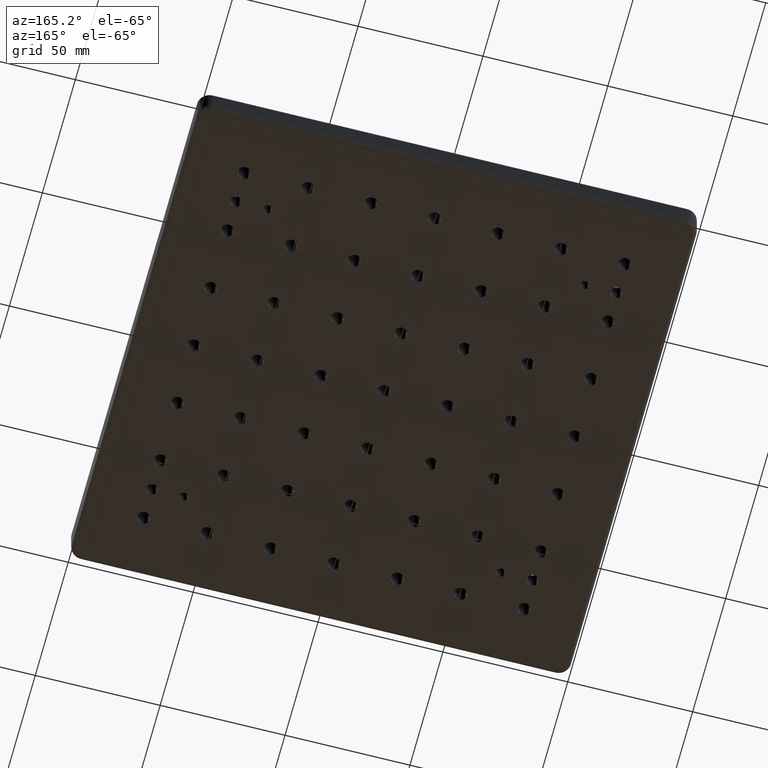
[diagram: clean part render]
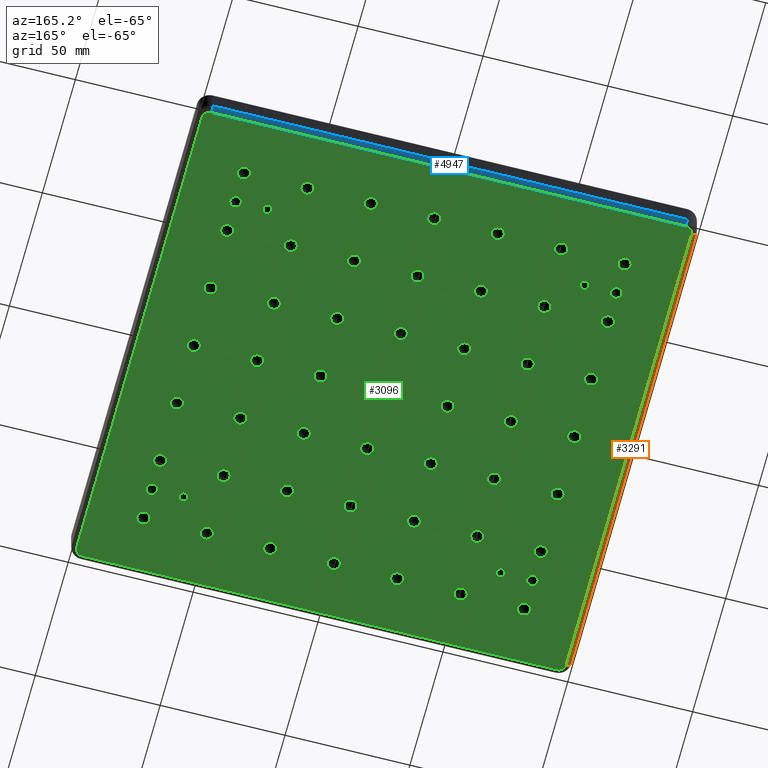
[diagram: same view with three faces highlighted in distinct colors, each labeled with its STEP entity id]
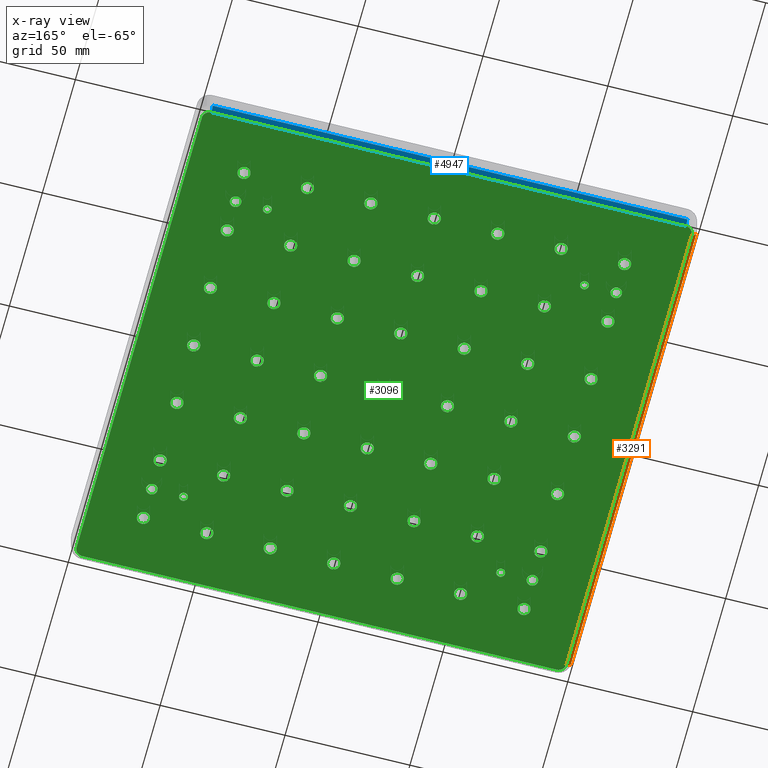
[diagram: x-ray of the same camera — body ghosted, the three highlighted faces saturated]
A machine part, auxiliary view with three faces highlighted in distinct colors.
The next image is the same camera in x-ray (body ghosted, the three faces saturated) — at least one of them is partly hidden behind the body in this view.
Their STEP definitions:

[orange] entity #3291 — the highlighted cylindrical surface (edge-blend (fillet) strip) has radius 2 mm, axis along (0, -1, 0).
#10 = EDGE_LOOP ( 'NONE', ( #3547, #4261, #3533, #1910 ) ) ;
#71 = VECTOR ( 'NONE', #2023, 1000.000000000000000 ) ;
#356 = CARTESIAN_POINT ( 'NONE',  ( -100.0000000000000100, 94.99999999999991500, -11.00000000000000000 ) ) ;
#425 = CARTESIAN_POINT ( 'NONE',  ( -100.0000000000000100, 94.99999999999991500, -11.00000000000000000 ) ) ;
#886 = CARTESIAN_POINT ( 'NONE',  ( -99.99999999999998600, -95.00000000000001400, -11.00000000000000000 ) ) ;
#1407 = VERTEX_POINT ( 'NONE', #425 ) ;
#1451 = DIRECTION ( 'NONE',  ( 0.0000000000000000000, -6.938893903907228400E-015, -1.000000000000000000 ) ) ;
#1543 = CARTESIAN_POINT ( 'NONE',  ( -98.00000000000001400, 94.99999999999991500, -11.00000000000000000 ) ) ;
#1580 = DIRECTION ( 'NONE',  ( 1.000000000000000000, 0.0000000000000000000, 0.0000000000000000000 ) ) ;
#1590 = AXIS2_PLACEMENT_3D ( 'NONE', #1543, #1594, #1580 ) ;
#1594 = DIRECTION ( 'NONE',  ( 1.460819769243627600E-016, -1.000000000000000000, 0.0000000000000000000 ) ) ;
#1705 = VECTOR ( 'NONE', #2632, 1000.000000000000000 ) ;
#1910 = ORIENTED_EDGE ( 'NONE', *, *, #1921, .F. ) ;
#1921 = EDGE_CURVE ( 'NONE', #1407, #4960, #4875, .T. ) ;
#2023 = DIRECTION ( 'NONE',  ( 1.460819769243627600E-016, -1.000000000000000000, 0.0000000000000000000 ) ) ;
#2233 = CARTESIAN_POINT ( 'NONE',  ( -98.00000000000001400, 94.99999999999992900, -11.00000000000000000 ) ) ;
#2264 = EDGE_CURVE ( 'NONE', #2666, #4917, #2788, .T. ) ;
#2506 = CARTESIAN_POINT ( 'NONE',  ( -97.99999999999998600, -95.00000000000002800, -13.00000000000000000 ) ) ;
#2632 = DIRECTION ( 'NONE',  ( -1.460819769243627600E-016, 1.000000000000000000, -0.0000000000000000000 ) ) ;
#2657 = AXIS2_PLACEMENT_3D ( 'NONE', #3922, #3468, #1451 ) ;
#2666 = VERTEX_POINT ( 'NONE', #2506 ) ;
#2782 = EDGE_CURVE ( 'NONE', #1407, #4917, #3233, .T. ) ;
#2788 = LINE ( 'NONE', #4359, #1705 ) ;
#2799 = CARTESIAN_POINT ( 'NONE',  ( -98.00000000000001400, 94.99999999999991500, -13.00000000000000000 ) ) ;
#2896 = CIRCLE ( 'NONE', #2657, 2.000000000000000000 ) ;
#2967 = AXIS2_PLACEMENT_3D ( 'NONE', #2233, #3856, #3840 ) ;
#3233 = CIRCLE ( 'NONE', #2967, 2.000000000000000000 ) ;
#3291 = ADVANCED_FACE ( 'NONE', ( #4782 ), #3680, .T. ) ;
#3468 = DIRECTION ( 'NONE',  ( 0.0000000000000000000, -1.000000000000000000, 6.938893903907227600E-015 ) ) ;
#3533 = ORIENTED_EDGE ( 'NONE', *, *, #3899, .F. ) ;
#3547 = ORIENTED_EDGE ( 'NONE', *, *, #2782, .T. ) ;
#3680 = CYLINDRICAL_SURFACE ( 'NONE', #1590, 2.000000000000001800 ) ;
#3840 = DIRECTION ( 'NONE',  ( 0.0000000000000000000, -6.938893903907228400E-015, -1.000000000000000000 ) ) ;
#3856 = DIRECTION ( 'NONE',  ( 6.938893903907221300E-015, -1.000000000000000000, 6.938893903907227600E-015 ) ) ;
#3899 = EDGE_CURVE ( 'NONE', #4960, #2666, #2896, .T. ) ;
#3922 = CARTESIAN_POINT ( 'NONE',  ( -97.99999999999998600, -95.00000000000001400, -11.00000000000000000 ) ) ;
#4261 = ORIENTED_EDGE ( 'NONE', *, *, #2264, .F. ) ;
#4359 = CARTESIAN_POINT ( 'NONE',  ( -98.00000000000000000, 94.99999999999992900, -13.00000000000000000 ) ) ;
#4782 = FACE_OUTER_BOUND ( 'NONE', #10, .T. ) ;
#4875 = LINE ( 'NONE', #356, #71 ) ;
#4917 = VERTEX_POINT ( 'NONE', #2799 ) ;
#4960 = VERTEX_POINT ( 'NONE', #886 ) ;

[blue] entity #4947 — the highlighted cylindrical surface (edge-blend (fillet) strip) has radius 2 mm, axis along (-1, -0, 0).
#87 = DIRECTION ( 'NONE',  ( -1.000000000000000000, -7.304098846218138100E-017, 0.0000000000000000000 ) ) ;
#214 = EDGE_CURVE ( 'NONE', #842, #1978, #2298, .T. ) ;
#221 = DIRECTION ( 'NONE',  ( 6.938893903907228400E-015, 0.0000000000000000000, 1.000000000000000000 ) ) ;
#290 = CIRCLE ( 'NONE', #2626, 2.000000000000000000 ) ;
#573 = DIRECTION ( 'NONE',  ( -1.000000000000000000, -7.304098846218138100E-017, 0.0000000000000000000 ) ) ;
#775 = DIRECTION ( 'NONE',  ( -1.000000000000000000, 0.0000000000000000000, 6.938893903907227600E-015 ) ) ;
#828 = EDGE_CURVE ( 'NONE', #1828, #842, #3513, .T. ) ;
#842 = VERTEX_POINT ( 'NONE', #1312 ) ;
#1209 = VECTOR ( 'NONE', #573, 1000.000000000000000 ) ;
#1215 = CARTESIAN_POINT ( 'NONE',  ( -94.99999999999998600, 99.99999999999994300, -11.00000000000000000 ) ) ;
#1311 = VECTOR ( 'NONE', #3650, 1000.000000000000000 ) ;
#1312 = CARTESIAN_POINT ( 'NONE',  ( -94.99999999999998600, 99.99999999999994300, -11.00000000000000000 ) ) ;
#1483 = FACE_OUTER_BOUND ( 'NONE', #5101, .T. ) ;
#1609 = CARTESIAN_POINT ( 'NONE',  ( 95.00000000000000000, 97.99999999999995700, -13.00000000000000000 ) ) ;
#1828 = VERTEX_POINT ( 'NONE', #3138 ) ;
#1962 = ORIENTED_EDGE ( 'NONE', *, *, #4153, .F. ) ;
#1978 = VERTEX_POINT ( 'NONE', #3721 ) ;
#2024 = DIRECTION ( 'NONE',  ( 6.938893903907228400E-015, 0.0000000000000000000, 1.000000000000000000 ) ) ;
#2298 = CIRCLE ( 'NONE', #2981, 2.000000000000000000 ) ;
#2324 = AXIS2_PLACEMENT_3D ( 'NONE', #4452, #87, #2539 ) ;
#2363 = ORIENTED_EDGE ( 'NONE', *, *, #828, .F. ) ;
#2539 = DIRECTION ( 'NONE',  ( 0.0000000000000000000, -1.000000000000000000, 0.0000000000000000000 ) ) ;
#2626 = AXIS2_PLACEMENT_3D ( 'NONE', #4765, #5162, #221 ) ;
#2981 = AXIS2_PLACEMENT_3D ( 'NONE', #4500, #775, #2024 ) ;
#3138 = CARTESIAN_POINT ( 'NONE',  ( 94.99999999999997200, 99.99999999999995700, -11.00000000000000000 ) ) ;
#3338 = ORIENTED_EDGE ( 'NONE', *, *, #214, .F. ) ;
#3513 = LINE ( 'NONE', #1215, #1209 ) ;
#3650 = DIRECTION ( 'NONE',  ( 1.000000000000000000, 7.304098846218138100E-017, -0.0000000000000000000 ) ) ;
#3721 = CARTESIAN_POINT ( 'NONE',  ( -95.00000000000000000, 97.99999999999994300, -13.00000000000000000 ) ) ;
#3834 = CARTESIAN_POINT ( 'NONE',  ( 94.99999999999997200, 97.99999999999995700, -13.00000000000000000 ) ) ;
#4153 = EDGE_CURVE ( 'NONE', #1978, #5103, #5240, .T. ) ;
#4254 = CYLINDRICAL_SURFACE ( 'NONE', #2324, 2.000000000000001800 ) ;
#4452 = CARTESIAN_POINT ( 'NONE',  ( -94.99999999999998600, 97.99999999999994300, -11.00000000000000000 ) ) ;
#4500 = CARTESIAN_POINT ( 'NONE',  ( -94.99999999999998600, 97.99999999999994300, -11.00000000000000000 ) ) ;
#4625 = EDGE_CURVE ( 'NONE', #1828, #5103, #290, .T. ) ;
#4765 = CARTESIAN_POINT ( 'NONE',  ( 94.99999999999998600, 97.99999999999995700, -11.00000000000000000 ) ) ;
#4947 = ADVANCED_FACE ( 'NONE', ( #1483 ), #4254, .T. ) ;
#5101 = EDGE_LOOP ( 'NONE', ( #5300, #1962, #3338, #2363 ) ) ;
#5103 = VERTEX_POINT ( 'NONE', #3834 ) ;
#5162 = DIRECTION ( 'NONE',  ( -1.000000000000000000, -6.938893903907221300E-015, 6.938893903907227600E-015 ) ) ;
#5240 = LINE ( 'NONE', #1609, #1311 ) ;
#5300 = ORIENTED_EDGE ( 'NONE', *, *, #4625, .T. ) ;

[green] entity #3096 — the highlighted planar face has unit normal (-0, 0, -1).
#5 = EDGE_LOOP ( 'NONE', ( #4715, #996 ) ) ;
#11 = DIRECTION ( 'NONE',  ( -0.0000000000000000000, -0.0000000000000000000, -1.000000000000000000 ) ) ;
#14 = EDGE_CURVE ( 'NONE', #3739, #1658, #2873, .T. ) ;
#19 = EDGE_CURVE ( 'NONE', #5000, #4027, #2365, .T. ) ;
#24 = AXIS2_PLACEMENT_3D ( 'NONE', #2907, #1707, #3348 ) ;
#26 = EDGE_CURVE ( 'NONE', #984, #3993, #1972, .T. ) ;
#34 = CARTESIAN_POINT ( 'NONE',  ( 48.24729999999998900, -76.20000000000004500, -13.00000000000000000 ) ) ;
#35 = ORIENTED_EDGE ( 'NONE', *, *, #393, .F. ) ;
#43 = AXIS2_PLACEMENT_3D ( 'NONE', #1927, #1947, #736 ) ;
#45 = FACE_BOUND ( 'NONE', #2239, .T. ) ;
#50 = DIRECTION ( 'NONE',  ( -0.0000000000000000000, -0.0000000000000000000, -1.000000000000000000 ) ) ;
#58 = EDGE_CURVE ( 'NONE', #3267, #4956, #5148, .T. ) ;
#60 = ORIENTED_EDGE ( 'NONE', *, *, #2465, .F. ) ;
#70 = CIRCLE ( 'NONE', #1005, 2.552699999999990900 ) ;
#76 = DIRECTION ( 'NONE',  ( -0.0000000000000000000, -0.0000000000000000000, -1.000000000000000000 ) ) ;
#90 = EDGE_LOOP ( 'NONE', ( #3866, #599 ) ) ;
#94 = ORIENTED_EDGE ( 'NONE', *, *, #4169, .F. ) ;
#99 = VERTEX_POINT ( 'NONE', #2780 ) ;
#100 = EDGE_CURVE ( 'NONE', #1573, #1716, #4887, .T. ) ;
#111 = VERTEX_POINT ( 'NONE', #3975 ) ;
#112 = FACE_BOUND ( 'NONE', #5131, .T. ) ;
#114 = CARTESIAN_POINT ( 'NONE',  ( -78.75270000000001900, 50.79999999999995500, -13.00000000000000000 ) ) ;
#126 = VERTEX_POINT ( 'NONE', #1597 ) ;
#127 = CIRCLE ( 'NONE', #4608, 2.552699999999990900 ) ;
#128 = AXIS2_PLACEMENT_3D ( 'NONE', #2513, #2880, #3762 ) ;
#130 = CARTESIAN_POINT ( 'NONE',  ( -53.35270000000002000, -25.40000000000004800, -13.00000000000000000 ) ) ;
#141 = CARTESIAN_POINT ( 'NONE',  ( -76.20000000000003100, 50.79999999999995500, -13.00000000000000000 ) ) ;
#145 = ORIENTED_EDGE ( 'NONE', *, *, #2807, .F. ) ;
#146 = CIRCLE ( 'NONE', #1815, 1.727199999999984300 ) ;
#148 = CARTESIAN_POINT ( 'NONE',  ( -27.95270000000002900, -5.519853564283948800E-014, -13.00000000000000000 ) ) ;
#160 = DIRECTION ( 'NONE',  ( -0.0000000000000000000, -0.0000000000000000000, -1.000000000000000000 ) ) ;
#164 = EDGE_CURVE ( 'NONE', #4807, #728, #3462, .T. ) ;
#167 = EDGE_LOOP ( 'NONE', ( #2681, #2808 ) ) ;
#170 = CIRCLE ( 'NONE', #4390, 2.552699999999990900 ) ;
#173 = EDGE_LOOP ( 'NONE', ( #3472, #3662 ) ) ;
#177 = FACE_BOUND ( 'NONE', #4944, .T. ) ;
#183 = CARTESIAN_POINT ( 'NONE',  ( 50.79999999999997600, -76.20000000000004500, -13.00000000000000000 ) ) ;
#185 = AXIS2_PLACEMENT_3D ( 'NONE', #5097, #976, #2201 ) ;
#186 = FACE_BOUND ( 'NONE', #2763, .T. ) ;
#189 = CARTESIAN_POINT ( 'NONE',  ( -76.20000000000000300, -63.50000000000004300, -13.00000000000000200 ) ) ;
#190 = CARTESIAN_POINT ( 'NONE',  ( 76.19999999999993200, 76.19999999999993200, -13.00000000000000000 ) ) ;
#195 = DIRECTION ( 'NONE',  ( -0.0000000000000000000, -0.0000000000000000000, -1.000000000000000000 ) ) ;
#197 = DIRECTION ( 'NONE',  ( -0.0000000000000000000, -0.0000000000000000000, -1.000000000000000000 ) ) ;
#205 = DIRECTION ( 'NONE',  ( -1.000000000000000000, 0.0000000000000000000, 0.0000000000000000000 ) ) ;
#212 = AXIS2_PLACEMENT_3D ( 'NONE', #189, #2168, #999 ) ;
#220 = CARTESIAN_POINT ( 'NONE',  ( -73.64730000000004400, 50.79999999999995500, -13.00000000000000000 ) ) ;
#230 = EDGE_LOOP ( 'NONE', ( #1676, #2316 ) ) ;
#238 = CARTESIAN_POINT ( 'NONE',  ( 2.552699999999963300, -76.20000000000004500, -13.00000000000000000 ) ) ;
#243 = AXIS2_PLACEMENT_3D ( 'NONE', #754, #1610, #4462 ) ;
#244 = CARTESIAN_POINT ( 'NONE',  ( 2.552699999999949600, 25.39999999999994200, -13.00000000000000000 ) ) ;
#249 = DIRECTION ( 'NONE',  ( 1.000000000000000000, 0.0000000000000000000, 0.0000000000000000000 ) ) ;
#251 = CARTESIAN_POINT ( 'NONE',  ( -2.552700000000032600, -5.519853564283948800E-014, -13.00000000000000000 ) ) ;
#252 = AXIS2_PLACEMENT_3D ( 'NONE', #5108, #1748, #5091 ) ;
#256 = CARTESIAN_POINT ( 'NONE',  ( -2.775557561562891400E-014, -76.20000000000004500, -13.00000000000000000 ) ) ;
#266 = EDGE_LOOP ( 'NONE', ( #1735, #2134 ) ) ;
#273 = CARTESIAN_POINT ( 'NONE',  ( 95.00000000000000000, -98.00000000000004300, -13.00000000000000000 ) ) ;
#274 = ORIENTED_EDGE ( 'NONE', *, *, #1062, .F. ) ;
#277 = CIRCLE ( 'NONE', #3147, 2.552699999999990900 ) ;
#289 = EDGE_CURVE ( 'NONE', #3087, #4208, #146, .T. ) ;
#291 = CIRCLE ( 'NONE', #3352, 1.727199999999984300 ) ;
#297 = DIRECTION ( 'NONE',  ( -0.0000000000000000000, -0.0000000000000000000, -1.000000000000000000 ) ) ;
#323 = DIRECTION ( 'NONE',  ( -1.000000000000000000, 0.0000000000000000000, 0.0000000000000000000 ) ) ;
#343 = VERTEX_POINT ( 'NONE', #1651 ) ;
#350 = VERTEX_POINT ( 'NONE', #2474 ) ;
#353 = CARTESIAN_POINT ( 'NONE',  ( -78.75270000000001900, -5.519853564283948800E-014, -13.00000000000000000 ) ) ;
#357 = AXIS2_PLACEMENT_3D ( 'NONE', #2377, #2357, #675 ) ;
#360 = DIRECTION ( 'NONE',  ( -0.0000000000000000000, -0.0000000000000000000, -1.000000000000000000 ) ) ;
#361 = VERTEX_POINT ( 'NONE', #3342 ) ;
#372 = EDGE_CURVE ( 'NONE', #1716, #1573, #2489, .T. ) ;
#373 = DIRECTION ( 'NONE',  ( -1.000000000000000000, 0.0000000000000000000, 0.0000000000000000000 ) ) ;
#382 = DIRECTION ( 'NONE',  ( -1.000000000000000000, 0.0000000000000000000, 0.0000000000000000000 ) ) ;
#384 = CARTESIAN_POINT ( 'NONE',  ( -78.45000000000000300, -63.50000000000004300, -13.00000000000000200 ) ) ;
#391 = CARTESIAN_POINT ( 'NONE',  ( 76.19999999999993200, 25.39999999999994900, -13.00000000000000000 ) ) ;
#393 = EDGE_CURVE ( 'NONE', #3022, #430, #1967, .T. ) ;
#397 = AXIS2_PLACEMENT_3D ( 'NONE', #5161, #4734, #3456 ) ;
#399 = EDGE_CURVE ( 'NONE', #2866, #4896, #4042, .T. ) ;
#400 = EDGE_LOOP ( 'NONE', ( #3538, #4103 ) ) ;
#401 = DIRECTION ( 'NONE',  ( -1.000000000000000000, 0.0000000000000000000, 0.0000000000000000000 ) ) ;
#413 = CARTESIAN_POINT ( 'NONE',  ( -48.24730000000003100, -76.20000000000004500, -13.00000000000000000 ) ) ;
#414 = DIRECTION ( 'NONE',  ( -0.0000000000000000000, -0.0000000000000000000, -1.000000000000000000 ) ) ;
#417 = ORIENTED_EDGE ( 'NONE', *, *, #851, .F. ) ;
#420 = DIRECTION ( 'NONE',  ( -0.0000000000000000000, -0.0000000000000000000, -1.000000000000000000 ) ) ;
#427 = FACE_BOUND ( 'NONE', #2822, .T. ) ;
#430 = VERTEX_POINT ( 'NONE', #2191 ) ;
#433 = CARTESIAN_POINT ( 'NONE',  ( 25.39999999999996300, -25.40000000000004800, -13.00000000000000000 ) ) ;
#435 = VERTEX_POINT ( 'NONE', #566 ) ;
#438 = FACE_BOUND ( 'NONE', #4616, .T. ) ;
#443 = CARTESIAN_POINT ( 'NONE',  ( -48.24730000000004500, 76.19999999999993200, -13.00000000000000000 ) ) ;
#448 = AXIS2_PLACEMENT_3D ( 'NONE', #1383, #4671, #1805 ) ;
#461 = ORIENTED_EDGE ( 'NONE', *, *, #372, .F. ) ;
#470 = AXIS2_PLACEMENT_3D ( 'NONE', #1453, #4744, #4210 ) ;
#473 = VERTEX_POINT ( 'NONE', #2206 ) ;
#474 = DIRECTION ( 'NONE',  ( -0.0000000000000000000, -0.0000000000000000000, -1.000000000000000000 ) ) ;
#477 = ORIENTED_EDGE ( 'NONE', *, *, #2052, .F. ) ;
#478 = DIRECTION ( 'NONE',  ( -0.0000000000000000000, -0.0000000000000000000, -1.000000000000000000 ) ) ;
#479 = CIRCLE ( 'NONE', #796, 1.727199999999984300 ) ;
#494 = DIRECTION ( 'NONE',  ( -0.0000000000000000000, -0.0000000000000000000, -1.000000000000000000 ) ) ;
#501 = CARTESIAN_POINT ( 'NONE',  ( 95.00000000000000000, 94.99999999999995700, -13.00000000000000000 ) ) ;
#502 = AXIS2_PLACEMENT_3D ( 'NONE', #1158, #1568, #2818 ) ;
#504 = EDGE_CURVE ( 'NONE', #935, #4113, #4945, .T. ) ;
#508 = CARTESIAN_POINT ( 'NONE',  ( -94.99999999999998600, -95.00000000000004300, -13.00000000000000000 ) ) ;
#521 = EDGE_CURVE ( 'NONE', #4763, #2305, #1656, .T. ) ;
#526 = CARTESIAN_POINT ( 'NONE',  ( -76.20000000000001700, -76.20000000000004500, -13.00000000000000000 ) ) ;
#528 = CARTESIAN_POINT ( 'NONE',  ( -22.84730000000002900, -76.20000000000004500, -13.00000000000000000 ) ) ;
#533 = DIRECTION ( 'NONE',  ( -0.0000000000000000000, -0.0000000000000000000, -1.000000000000000000 ) ) ;
#534 = PLANE ( 'NONE',  #4913 ) ;
#537 = EDGE_CURVE ( 'NONE', #1777, #3310, #3457, .T. ) ;
#540 = DIRECTION ( 'NONE',  ( -0.0000000000000000000, -0.0000000000000000000, -1.000000000000000000 ) ) ;
#550 = DIRECTION ( 'NONE',  ( -1.000000000000000000, 0.0000000000000000000, 0.0000000000000000000 ) ) ;
#553 = AXIS2_PLACEMENT_3D ( 'NONE', #1386, #3795, #3863 ) ;
#556 = CARTESIAN_POINT ( 'NONE',  ( -76.20000000000001700, -25.40000000000004800, -13.00000000000000000 ) ) ;
#557 = DIRECTION ( 'NONE',  ( -1.000000000000000000, 0.0000000000000000000, 0.0000000000000000000 ) ) ;
#559 = FACE_BOUND ( 'NONE', #1346, .T. ) ;
#560 = DIRECTION ( 'NONE',  ( -1.000000000000000000, 0.0000000000000000000, 0.0000000000000000000 ) ) ;
#562 = AXIS2_PLACEMENT_3D ( 'NONE', #1709, #2943, #921 ) ;
#566 = CARTESIAN_POINT ( 'NONE',  ( 22.84729999999997200, -25.40000000000004800, -13.00000000000000000 ) ) ;
#570 = VERTEX_POINT ( 'NONE', #3113 ) ;
#576 = CARTESIAN_POINT ( 'NONE',  ( -25.40000000000003800, -5.551115123125782700E-014, -13.00000000000000000 ) ) ;
#577 = DIRECTION ( 'NONE',  ( -1.000000000000000000, 0.0000000000000000000, 0.0000000000000000000 ) ) ;
#580 = EDGE_LOOP ( 'NONE', ( #891, #790 ) ) ;
#594 = VERTEX_POINT ( 'NONE', #4725 ) ;
#595 = AXIS2_PLACEMENT_3D ( 'NONE', #4628, #2605, #3241 ) ;
#597 = EDGE_LOOP ( 'NONE', ( #1022, #3869 ) ) ;
#599 = ORIENTED_EDGE ( 'NONE', *, *, #4123, .F. ) ;
#603 = DIRECTION ( 'NONE',  ( -1.000000000000000000, 0.0000000000000000000, 0.0000000000000000000 ) ) ;
#611 = CARTESIAN_POINT ( 'NONE',  ( 27.95269999999996100, -76.20000000000004500, -13.00000000000000000 ) ) ;
#617 = DIRECTION ( 'NONE',  ( -1.000000000000000000, 0.0000000000000000000, 0.0000000000000000000 ) ) ;
#627 = ORIENTED_EDGE ( 'NONE', *, *, #3759, .F. ) ;
#634 = DIRECTION ( 'NONE',  ( -1.000000000000000000, 0.0000000000000000000, 0.0000000000000000000 ) ) ;
#635 = CIRCLE ( 'NONE', #3803, 2.552699999999990900 ) ;
#636 = AXIS2_PLACEMENT_3D ( 'NONE', #1525, #2761, #4405 ) ;
#642 = CIRCLE ( 'NONE', #1623, 2.552699999999990900 ) ;
#648 = ORIENTED_EDGE ( 'NONE', *, *, #1242, .T. ) ;
#649 = AXIS2_PLACEMENT_3D ( 'NONE', #4604, #5030, #864 ) ;
#661 = VERTEX_POINT ( 'NONE', #413 ) ;
#663 = EDGE_CURVE ( 'NONE', #4024, #3182, #3255, .T. ) ;
#668 = DIRECTION ( 'NONE',  ( -0.0000000000000000000, -0.0000000000000000000, -1.000000000000000000 ) ) ;
#671 = CIRCLE ( 'NONE', #4575, 2.552699999999990900 ) ;
#675 = DIRECTION ( 'NONE',  ( -1.000000000000000000, 0.0000000000000000000, 0.0000000000000000000 ) ) ;
#678 = CIRCLE ( 'NONE', #1114, 2.552699999999990900 ) ;
#679 = FACE_BOUND ( 'NONE', #1457, .T. ) ;
#689 = DIRECTION ( 'NONE',  ( -0.0000000000000000000, -0.0000000000000000000, -1.000000000000000000 ) ) ;
#691 = CARTESIAN_POINT ( 'NONE',  ( 22.84729999999997200, 25.39999999999994200, -13.00000000000000000 ) ) ;
#716 = VERTEX_POINT ( 'NONE', #781 ) ;
#728 = VERTEX_POINT ( 'NONE', #4876 ) ;
#731 = CARTESIAN_POINT ( 'NONE',  ( -4.163336342344337000E-014, -25.40000000000004800, -13.00000000000000000 ) ) ;
#734 = EDGE_LOOP ( 'NONE', ( #2185, #3015 ) ) ;
#736 = DIRECTION ( 'NONE',  ( -1.000000000000000000, 0.0000000000000000000, 0.0000000000000000000 ) ) ;
#746 = DIRECTION ( 'NONE',  ( -1.000000000000000000, 0.0000000000000000000, 0.0000000000000000000 ) ) ;
#751 = ORIENTED_EDGE ( 'NONE', *, *, #1001, .F. ) ;
#754 = CARTESIAN_POINT ( 'NONE',  ( -2.775557561562891400E-014, -50.80000000000004700, -13.00000000000000000 ) ) ;
#759 = EDGE_CURVE ( 'NONE', #4225, #2631, #2029, .T. ) ;
#760 = DIRECTION ( 'NONE',  ( -0.0000000000000000000, -0.0000000000000000000, -1.000000000000000000 ) ) ;
#764 = ORIENTED_EDGE ( 'NONE', *, *, #289, .F. ) ;
#771 = AXIS2_PLACEMENT_3D ( 'NONE', #3197, #760, #373 ) ;
#773 = EDGE_CURVE ( 'NONE', #2167, #2515, #2804, .T. ) ;
#777 = DIRECTION ( 'NONE',  ( -0.0000000000000000000, -0.0000000000000000000, -1.000000000000000000 ) ) ;
#781 = CARTESIAN_POINT ( 'NONE',  ( 78.75269999999991900, 25.39999999999994900, -13.00000000000000000 ) ) ;
#786 = VERTEX_POINT ( 'NONE', #3356 ) ;
#790 = ORIENTED_EDGE ( 'NONE', *, *, #4600, .F. ) ;
#793 = DIRECTION ( 'NONE',  ( -0.0000000000000000000, -0.0000000000000000000, -1.000000000000000000 ) ) ;
#796 = AXIS2_PLACEMENT_3D ( 'NONE', #2868, #4196, #2560 ) ;
#800 = CIRCLE ( 'NONE', #4840, 2.552699999999990900 ) ;
#804 = EDGE_LOOP ( 'NONE', ( #1633, #3589 ) ) ;
#806 = FACE_BOUND ( 'NONE', #167, .T. ) ;
#814 = CARTESIAN_POINT ( 'NONE',  ( -76.20000000000003100, -5.551115123125782700E-014, -13.00000000000000000 ) ) ;
#815 = VERTEX_POINT ( 'NONE', #3757 ) ;
#817 = AXIS2_PLACEMENT_3D ( 'NONE', #731, #3582, #4011 ) ;
#819 = DIRECTION ( 'NONE',  ( -0.0000000000000000000, -0.0000000000000000000, -1.000000000000000000 ) ) ;
#820 = DIRECTION ( 'NONE',  ( -1.000000000000000000, 0.0000000000000000000, 0.0000000000000000000 ) ) ;
#835 = EDGE_CURVE ( 'NONE', #343, #1227, #4883, .T. ) ;
#837 = DIRECTION ( 'NONE',  ( -1.000000000000000000, 0.0000000000000000000, 0.0000000000000000000 ) ) ;
#848 = CARTESIAN_POINT ( 'NONE',  ( 98.00000000000000000, 94.99999999999995700, -13.00000000000000000 ) ) ;
#851 = EDGE_CURVE ( 'NONE', #1534, #1225, #2932, .T. ) ;
#860 = CARTESIAN_POINT ( 'NONE',  ( -50.80000000000004000, 50.79999999999994700, -13.00000000000000000 ) ) ;
#863 = VERTEX_POINT ( 'NONE', #3838 ) ;
#864 = DIRECTION ( 'NONE',  ( -1.000000000000000000, 0.0000000000000000000, 0.0000000000000000000 ) ) ;
#865 = CARTESIAN_POINT ( 'NONE',  ( 63.49999999999992900, 63.49999999999992900, -13.00000000000000200 ) ) ;
#867 = AXIS2_PLACEMENT_3D ( 'NONE', #4666, #533, #2999 ) ;
#871 = CARTESIAN_POINT ( 'NONE',  ( -48.24730000000004500, 50.79999999999994700, -13.00000000000000000 ) ) ;
#875 = AXIS2_PLACEMENT_3D ( 'NONE', #3163, #1936, #3144 ) ;
#877 = CARTESIAN_POINT ( 'NONE',  ( -78.75270000000003300, 76.19999999999993200, -13.00000000000000000 ) ) ;
#881 = ORIENTED_EDGE ( 'NONE', *, *, #2814, .F. ) ;
#889 = AXIS2_PLACEMENT_3D ( 'NONE', #1983, #4049, #3192 ) ;
#891 = ORIENTED_EDGE ( 'NONE', *, *, #1986, .F. ) ;
#901 = ORIENTED_EDGE ( 'NONE', *, *, #1790, .T. ) ;
#903 = DIRECTION ( 'NONE',  ( -0.0000000000000000000, -0.0000000000000000000, -1.000000000000000000 ) ) ;
#904 = AXIS2_PLACEMENT_3D ( 'NONE', #3689, #4902, #1966 ) ;
#911 = EDGE_CURVE ( 'NONE', #2028, #99, #2356, .T. ) ;
#917 = CIRCLE ( 'NONE', #2149, 2.552699999999990900 ) ;
#920 = AXIS2_PLACEMENT_3D ( 'NONE', #5202, #2716, #1129 ) ;
#921 = DIRECTION ( 'NONE',  ( -1.000000000000000000, 0.0000000000000000000, 0.0000000000000000000 ) ) ;
#924 = CIRCLE ( 'NONE', #1702, 2.552699999999990900 ) ;
#935 = VERTEX_POINT ( 'NONE', #238 ) ;
#936 = EDGE_CURVE ( 'NONE', #361, #5239, #1452, .T. ) ;
#938 = DIRECTION ( 'NONE',  ( -0.0000000000000000000, 0.0000000000000000000, -1.000000000000000000 ) ) ;
#943 = DIRECTION ( 'NONE',  ( -0.0000000000000000000, -0.0000000000000000000, 1.000000000000000000 ) ) ;
#947 = ORIENTED_EDGE ( 'NONE', *, *, #4153, .T. ) ;
#958 = AXIS2_PLACEMENT_3D ( 'NONE', #3117, #1491, #1019 ) ;
#960 = CARTESIAN_POINT ( 'NONE',  ( 76.19999999999993200, 63.49999999999992900, -13.00000000000000200 ) ) ;
#965 = EDGE_LOOP ( 'NONE', ( #5316, #751 ) ) ;
#970 = CARTESIAN_POINT ( 'NONE',  ( -76.20000000000001700, -25.40000000000004800, -13.00000000000000000 ) ) ;
#976 = DIRECTION ( 'NONE',  ( -0.0000000000000000000, -0.0000000000000000000, 1.000000000000000000 ) ) ;
#980 = EDGE_LOOP ( 'NONE', ( #3343, #3918, #3754, #3479, #947, #3880, #2957, #648 ) ) ;
#982 = EDGE_LOOP ( 'NONE', ( #2789, #4941 ) ) ;
#984 = VERTEX_POINT ( 'NONE', #4273 ) ;
#988 = ORIENTED_EDGE ( 'NONE', *, *, #3545, .F. ) ;
#990 = FACE_BOUND ( 'NONE', #2097, .T. ) ;
#991 = DIRECTION ( 'NONE',  ( -1.000000000000000000, 0.0000000000000000000, 0.0000000000000000000 ) ) ;
#996 = ORIENTED_EDGE ( 'NONE', *, *, #1143, .F. ) ;
#999 = DIRECTION ( 'NONE',  ( 1.000000000000000000, 0.0000000000000000000, 0.0000000000000000000 ) ) ;
#1000 = ORIENTED_EDGE ( 'NONE', *, *, #936, .F. ) ;
#1001 = EDGE_CURVE ( 'NONE', #2673, #4675, #2162, .T. ) ;
#1002 = DIRECTION ( 'NONE',  ( -0.0000000000000000000, -0.0000000000000000000, -1.000000000000000000 ) ) ;
#1004 = LINE ( 'NONE', #848, #2408 ) ;
#1005 = AXIS2_PLACEMENT_3D ( 'NONE', #4955, #1654, #3765 ) ;
#1006 = CARTESIAN_POINT ( 'NONE',  ( 76.19999999999997400, -63.50000000000004300, -13.00000000000000200 ) ) ;
#1008 = VERTEX_POINT ( 'NONE', #2283 ) ;
#1017 = EDGE_LOOP ( 'NONE', ( #2876, #2570 ) ) ;
#1019 = DIRECTION ( 'NONE',  ( -1.000000000000000000, 0.0000000000000000000, 0.0000000000000000000 ) ) ;
#1022 = ORIENTED_EDGE ( 'NONE', *, *, #4970, .F. ) ;
#1024 = DIRECTION ( 'NONE',  ( -0.0000000000000000000, -0.0000000000000000000, -1.000000000000000000 ) ) ;
#1028 = EDGE_CURVE ( 'NONE', #2582, #3280, #1275, .T. ) ;
#1030 = VERTEX_POINT ( 'NONE', #220 ) ;
#1032 = ORIENTED_EDGE ( 'NONE', *, *, #2203, .T. ) ;
#1037 = AXIS2_PLACEMENT_3D ( 'NONE', #2746, #1055, #2302 ) ;
#1053 = FACE_BOUND ( 'NONE', #1290, .T. ) ;
#1055 = DIRECTION ( 'NONE',  ( -0.0000000000000000000, -0.0000000000000000000, -1.000000000000000000 ) ) ;
#1061 = EDGE_LOOP ( 'NONE', ( #5100, #3261 ) ) ;
#1062 = EDGE_CURVE ( 'NONE', #2850, #4463, #3968, .T. ) ;
#1068 = CARTESIAN_POINT ( 'NONE',  ( 48.24729999999996000, 76.19999999999993200, -13.00000000000000000 ) ) ;
#1072 = CARTESIAN_POINT ( 'NONE',  ( -53.35270000000002700, 25.39999999999994200, -13.00000000000000000 ) ) ;
#1077 = AXIS2_PLACEMENT_3D ( 'NONE', #4191, #494, #4559 ) ;
#1080 = DIRECTION ( 'NONE',  ( -0.0000000000000000000, -0.0000000000000000000, -1.000000000000000000 ) ) ;
#1084 = ORIENTED_EDGE ( 'NONE', *, *, #1784, .F. ) ;
#1091 = VERTEX_POINT ( 'NONE', #2321 ) ;
#1095 = EDGE_CURVE ( 'NONE', #1225, #1534, #4487, .T. ) ;
#1102 = CARTESIAN_POINT ( 'NONE',  ( -76.20000000000001700, -76.20000000000004500, -13.00000000000000000 ) ) ;
#1114 = AXIS2_PLACEMENT_3D ( 'NONE', #1592, #3282, #382 ) ;
#1121 = FACE_BOUND ( 'NONE', #4086, .T. ) ;
#1122 = CARTESIAN_POINT ( 'NONE',  ( 53.35269999999997000, -76.20000000000004500, -13.00000000000000000 ) ) ;
#1126 = CIRCLE ( 'NONE', #2559, 2.552699999999990900 ) ;
#1129 = DIRECTION ( 'NONE',  ( -1.000000000000000000, 0.0000000000000000000, 0.0000000000000000000 ) ) ;
#1130 = CIRCLE ( 'NONE', #553, 2.552699999999990900 ) ;
#1131 = AXIS2_PLACEMENT_3D ( 'NONE', #2412, #777, #4431 ) ;
#1135 = CARTESIAN_POINT ( 'NONE',  ( 76.19999999999996000, -76.20000000000004500, -13.00000000000000000 ) ) ;
#1141 = CARTESIAN_POINT ( 'NONE',  ( 50.79999999999995500, 50.79999999999994700, -13.00000000000000000 ) ) ;
#1142 = CIRCLE ( 'NONE', #128, 2.552699999999990900 ) ;
#1143 = EDGE_CURVE ( 'NONE', #473, #3972, #3648, .T. ) ;
#1149 = AXIS2_PLACEMENT_3D ( 'NONE', #5119, #3006, #577 ) ;
#1154 = VERTEX_POINT ( 'NONE', #4867 ) ;
#1155 = CARTESIAN_POINT ( 'NONE',  ( 25.39999999999996300, 25.39999999999994200, -13.00000000000000000 ) ) ;
#1158 = CARTESIAN_POINT ( 'NONE',  ( 76.19999999999993200, 50.79999999999995500, -13.00000000000000000 ) ) ;
#1165 = DIRECTION ( 'NONE',  ( -0.0000000000000000000, -0.0000000000000000000, -1.000000000000000000 ) ) ;
#1166 = EDGE_CURVE ( 'NONE', #2515, #2167, #4294, .T. ) ;
#1176 = EDGE_CURVE ( 'NONE', #3172, #1091, #1142, .T. ) ;
#1178 = CARTESIAN_POINT ( 'NONE',  ( -25.40000000000002000, -76.20000000000004500, -13.00000000000000000 ) ) ;
#1180 = FACE_BOUND ( 'NONE', #2503, .T. ) ;
#1182 = DIRECTION ( 'NONE',  ( -0.0000000000000000000, -0.0000000000000000000, -1.000000000000000000 ) ) ;
#1187 = AXIS2_PLACEMENT_3D ( 'NONE', #2731, #1182, #2800 ) ;
#1189 = CARTESIAN_POINT ( 'NONE',  ( -63.50000000000004300, 63.49999999999992900, -13.00000000000000200 ) ) ;
#1201 = CARTESIAN_POINT ( 'NONE',  ( -73.95000000000000300, -63.50000000000004300, -13.00000000000000200 ) ) ;
#1210 = VERTEX_POINT ( 'NONE', #4933 ) ;
#1225 = VERTEX_POINT ( 'NONE', #1122 ) ;
#1227 = VERTEX_POINT ( 'NONE', #5192 ) ;
#1236 = EDGE_LOOP ( 'NONE', ( #1765, #3368 ) ) ;
#1242 = EDGE_CURVE ( 'NONE', #4190, #3927, #2096, .T. ) ;
#1243 = FACE_BOUND ( 'NONE', #580, .T. ) ;
#1253 = DIRECTION ( 'NONE',  ( -1.000000000000000000, 0.0000000000000000000, 0.0000000000000000000 ) ) ;
#1256 = ORIENTED_EDGE ( 'NONE', *, *, #1095, .F. ) ;
#1263 = DIRECTION ( 'NONE',  ( -1.000000000000000000, 0.0000000000000000000, 0.0000000000000000000 ) ) ;
#1271 = CARTESIAN_POINT ( 'NONE',  ( -4.163336342344337000E-014, 50.79999999999994700, -13.00000000000000000 ) ) ;
#1275 = CIRCLE ( 'NONE', #4064, 2.250000000000001800 ) ;
#1278 = EDGE_LOOP ( 'NONE', ( #4158, #1603 ) ) ;
#1290 = EDGE_LOOP ( 'NONE', ( #1000, #1750 ) ) ;
#1292 = DIRECTION ( 'NONE',  ( -0.0000000000000000000, -0.0000000000000000000, -1.000000000000000000 ) ) ;
#1295 = CIRCLE ( 'NONE', #3361, 2.552699999999990900 ) ;
#1298 = EDGE_CURVE ( 'NONE', #1210, #4152, #1581, .T. ) ;
#1300 = VERTEX_POINT ( 'NONE', #4801 ) ;
#1311 = VECTOR ( 'NONE', #3650, 1000.000000000000000 ) ;
#1315 = CARTESIAN_POINT ( 'NONE',  ( -50.80000000000004000, 25.39999999999994200, -13.00000000000000000 ) ) ;
#1326 = CARTESIAN_POINT ( 'NONE',  ( 76.19999999999997400, -63.50000000000004300, -13.00000000000000200 ) ) ;
#1341 = DIRECTION ( 'NONE',  ( -1.000000000000000000, 0.0000000000000000000, 0.0000000000000000000 ) ) ;
#1346 = EDGE_LOOP ( 'NONE', ( #5230, #1084 ) ) ;
#1350 = EDGE_LOOP ( 'NONE', ( #2903, #2480 ) ) ;
#1362 = DIRECTION ( 'NONE',  ( -0.0000000000000000000, -0.0000000000000000000, -1.000000000000000000 ) ) ;
#1364 = AXIS2_PLACEMENT_3D ( 'NONE', #576, #4652, #4259 ) ;
#1367 = EDGE_CURVE ( 'NONE', #1926, #4054, #3503, .T. ) ;
#1371 = FACE_BOUND ( 'NONE', #4609, .T. ) ;
#1375 = EDGE_CURVE ( 'NONE', #4786, #4400, #2223, .T. ) ;
#1376 = DIRECTION ( 'NONE',  ( -1.000000000000000000, 0.0000000000000000000, 0.0000000000000000000 ) ) ;
#1377 = CARTESIAN_POINT ( 'NONE',  ( 2.552699999999949600, -5.551115123125782700E-014, -13.00000000000000000 ) ) ;
#1382 = CARTESIAN_POINT ( 'NONE',  ( -25.40000000000003100, -25.40000000000004800, -13.00000000000000000 ) ) ;
#1383 = CARTESIAN_POINT ( 'NONE',  ( 76.19999999999996000, -76.20000000000004500, -13.00000000000000000 ) ) ;
#1386 = CARTESIAN_POINT ( 'NONE',  ( -50.80000000000003300, -5.551115123125782700E-014, -13.00000000000000000 ) ) ;
#1389 = EDGE_CURVE ( 'NONE', #435, #4767, #3056, .T. ) ;
#1390 = CIRCLE ( 'NONE', #1077, 2.552699999999990900 ) ;
#1391 = CARTESIAN_POINT ( 'NONE',  ( 63.49999999999997200, -63.50000000000004300, -13.00000000000000200 ) ) ;
#1397 = CARTESIAN_POINT ( 'NONE',  ( 98.00000000000000000, 94.99999999999994300, -13.00000000000000000 ) ) ;
#1402 = AXIS2_PLACEMENT_3D ( 'NONE', #1382, #3877, #2322 ) ;
#1404 = CARTESIAN_POINT ( 'NONE',  ( -48.24730000000003100, -50.80000000000004700, -13.00000000000000000 ) ) ;
#1405 = DIRECTION ( 'NONE',  ( -0.0000000000000000000, -0.0000000000000000000, -1.000000000000000000 ) ) ;
#1414 = DIRECTION ( 'NONE',  ( 1.000000000000000000, 0.0000000000000000000, 0.0000000000000000000 ) ) ;
#1422 = EDGE_CURVE ( 'NONE', #3954, #2353, #4413, .T. ) ;
#1424 = CARTESIAN_POINT ( 'NONE',  ( -50.80000000000004000, 50.79999999999994700, -13.00000000000000000 ) ) ;
#1425 = VERTEX_POINT ( 'NONE', #4854 ) ;
#1426 = AXIS2_PLACEMENT_3D ( 'NONE', #1271, #4981, #1621 ) ;
#1427 = CIRCLE ( 'NONE', #5133, 2.552699999999990900 ) ;
#1439 = AXIS2_PLACEMENT_3D ( 'NONE', #5150, #2663, #634 ) ;
#1444 = EDGE_CURVE ( 'NONE', #1446, #815, #3837, .T. ) ;
#1446 = VERTEX_POINT ( 'NONE', #2007 ) ;
#1450 = ORIENTED_EDGE ( 'NONE', *, *, #1946, .F. ) ;
#1452 = CIRCLE ( 'NONE', #3498, 2.552699999999990900 ) ;
#1453 = CARTESIAN_POINT ( 'NONE',  ( 50.79999999999998300, -50.80000000000004700, -13.00000000000000000 ) ) ;
#1457 = EDGE_LOOP ( 'NONE', ( #1477, #627 ) ) ;
#1465 = DIRECTION ( 'NONE',  ( -1.000000000000000000, 0.0000000000000000000, 0.0000000000000000000 ) ) ;
#1467 = EDGE_CURVE ( 'NONE', #5239, #361, #2732, .T. ) ;
#1474 = DIRECTION ( 'NONE',  ( -1.000000000000000000, 0.0000000000000000000, 0.0000000000000000000 ) ) ;
#1477 = ORIENTED_EDGE ( 'NONE', *, *, #4200, .F. ) ;
#1480 = CARTESIAN_POINT ( 'NONE',  ( 27.95269999999993600, 76.19999999999993200, -13.00000000000000000 ) ) ;
#1491 = DIRECTION ( 'NONE',  ( -0.0000000000000000000, -0.0000000000000000000, -1.000000000000000000 ) ) ;
#1495 = FACE_BOUND ( 'NONE', #2198, .T. ) ;
#1496 = DIRECTION ( 'NONE',  ( -0.0000000000000000000, -0.0000000000000000000, -1.000000000000000000 ) ) ;
#1501 = AXIS2_PLACEMENT_3D ( 'NONE', #4283, #1002, #2156 ) ;
#1505 = FACE_BOUND ( 'NONE', #597, .T. ) ;
#1511 = DIRECTION ( 'NONE',  ( -1.000000000000000000, 0.0000000000000000000, 0.0000000000000000000 ) ) ;
#1525 = CARTESIAN_POINT ( 'NONE',  ( -50.80000000000004000, 76.19999999999993200, -13.00000000000000000 ) ) ;
#1531 = EDGE_CURVE ( 'NONE', #2916, #3141, #70, .T. ) ;
#1534 = VERTEX_POINT ( 'NONE', #34 ) ;
#1544 = DIRECTION ( 'NONE',  ( -1.000000000000000000, 0.0000000000000000000, 0.0000000000000000000 ) ) ;
#1547 = DIRECTION ( 'NONE',  ( 1.000000000000000000, 0.0000000000000000000, 0.0000000000000000000 ) ) ;
#1554 = CIRCLE ( 'NONE', #3485, 2.552699999999990900 ) ;
#1558 = CARTESIAN_POINT ( 'NONE',  ( -76.20000000000004500, 63.49999999999995700, -13.00000000000000200 ) ) ;
#1560 = LINE ( 'NONE', #4302, #4731 ) ;
#1568 = DIRECTION ( 'NONE',  ( -0.0000000000000000000, -0.0000000000000000000, -1.000000000000000000 ) ) ;
#1573 = VERTEX_POINT ( 'NONE', #443 ) ;
#1579 = CARTESIAN_POINT ( 'NONE',  ( -48.24730000000004500, 25.39999999999994200, -13.00000000000000000 ) ) ;
#1581 = CIRCLE ( 'NONE', #1037, 2.552699999999990900 ) ;
#1585 = VERTEX_POINT ( 'NONE', #871 ) ;
#1587 = DIRECTION ( 'NONE',  ( -1.000000000000000000, 0.0000000000000000000, 0.0000000000000000000 ) ) ;
#1592 = CARTESIAN_POINT ( 'NONE',  ( -25.40000000000003100, -50.80000000000004700, -13.00000000000000000 ) ) ;
#1597 = CARTESIAN_POINT ( 'NONE',  ( 73.64729999999994400, 25.39999999999994900, -13.00000000000000000 ) ) ;
#1601 = DIRECTION ( 'NONE',  ( -1.000000000000000000, 0.0000000000000000000, 0.0000000000000000000 ) ) ;
#1603 = ORIENTED_EDGE ( 'NONE', *, *, #4477, .F. ) ;
#1606 = CIRCLE ( 'NONE', #1898, 2.552699999999990900 ) ;
#1609 = CARTESIAN_POINT ( 'NONE',  ( 95.00000000000000000, 97.99999999999995700, -13.00000000000000000 ) ) ;
#1610 = DIRECTION ( 'NONE',  ( -0.0000000000000000000, -0.0000000000000000000, -1.000000000000000000 ) ) ;
#1612 = CIRCLE ( 'NONE', #2141, 2.250000000000001800 ) ;
#1613 = CARTESIAN_POINT ( 'NONE',  ( 48.24729999999999600, -25.40000000000004800, -13.00000000000000000 ) ) ;
#1619 = CIRCLE ( 'NONE', #958, 2.552699999999990900 ) ;
#1620 = FACE_BOUND ( 'NONE', #4829, .T. ) ;
#1621 = DIRECTION ( 'NONE',  ( -1.000000000000000000, 0.0000000000000000000, 0.0000000000000000000 ) ) ;
#1623 = AXIS2_PLACEMENT_3D ( 'NONE', #1155, #2813, #401 ) ;
#1626 = CARTESIAN_POINT ( 'NONE',  ( -2.552700000000046800, 76.19999999999993200, -13.00000000000000000 ) ) ;
#1633 = ORIENTED_EDGE ( 'NONE', *, *, #2209, .F. ) ;
#1639 = DIRECTION ( 'NONE',  ( -0.0000000000000000000, -0.0000000000000000000, -1.000000000000000000 ) ) ;
#1645 = DIRECTION ( 'NONE',  ( -1.000000000000000000, 0.0000000000000000000, 0.0000000000000000000 ) ) ;
#1649 = EDGE_CURVE ( 'NONE', #5190, #350, #3252, .T. ) ;
#1651 = CARTESIAN_POINT ( 'NONE',  ( -22.84730000000004000, -25.40000000000004800, -13.00000000000000000 ) ) ;
#1654 = DIRECTION ( 'NONE',  ( -0.0000000000000000000, -0.0000000000000000000, -1.000000000000000000 ) ) ;
#1656 = CIRCLE ( 'NONE', #1439, 1.727199999999984300 ) ;
#1658 = VERTEX_POINT ( 'NONE', #3499 ) ;
#1663 = ORIENTED_EDGE ( 'NONE', *, *, #5089, .F. ) ;
#1666 = DIRECTION ( 'NONE',  ( -1.000000000000000000, 0.0000000000000000000, 0.0000000000000000000 ) ) ;
#1668 = DIRECTION ( 'NONE',  ( -0.0000000000000000000, -0.0000000000000000000, -1.000000000000000000 ) ) ;
#1676 = ORIENTED_EDGE ( 'NONE', *, *, #773, .F. ) ;
#1681 = CARTESIAN_POINT ( 'NONE',  ( -25.40000000000002000, -76.20000000000004500, -13.00000000000000000 ) ) ;
#1682 = CARTESIAN_POINT ( 'NONE',  ( 48.24729999999996700, 50.79999999999994700, -13.00000000000000000 ) ) ;
#1689 = CARTESIAN_POINT ( 'NONE',  ( 78.44999999999997400, -63.50000000000004300, -13.00000000000000200 ) ) ;
#1690 = DIRECTION ( 'NONE',  ( -1.000000000000000000, 0.0000000000000000000, 0.0000000000000000000 ) ) ;
#1702 = AXIS2_PLACEMENT_3D ( 'NONE', #1714, #1362, #1341 ) ;
#1705 = VECTOR ( 'NONE', #2632, 1000.000000000000000 ) ;
#1707 = DIRECTION ( 'NONE',  ( -0.0000000000000000000, -0.0000000000000000000, -1.000000000000000000 ) ) ;
#1709 = CARTESIAN_POINT ( 'NONE',  ( -63.50000000000000000, -63.50000000000004300, -13.00000000000000200 ) ) ;
#1714 = CARTESIAN_POINT ( 'NONE',  ( -25.40000000000003800, -5.551115123125782700E-014, -13.00000000000000000 ) ) ;
#1716 = VERTEX_POINT ( 'NONE', #2578 ) ;
#1718 = EDGE_CURVE ( 'NONE', #111, #2628, #4629, .T. ) ;
#1726 = CARTESIAN_POINT ( 'NONE',  ( -78.45000000000004500, 63.49999999999995700, -13.00000000000000200 ) ) ;
#1735 = ORIENTED_EDGE ( 'NONE', *, *, #3300, .F. ) ;
#1738 = ORIENTED_EDGE ( 'NONE', *, *, #537, .F. ) ;
#1741 = ORIENTED_EDGE ( 'NONE', *, *, #2093, .F. ) ;
#1748 = DIRECTION ( 'NONE',  ( -0.0000000000000000000, -0.0000000000000000000, -1.000000000000000000 ) ) ;
#1750 = ORIENTED_EDGE ( 'NONE', *, *, #1467, .F. ) ;
#1751 = AXIS2_PLACEMENT_3D ( 'NONE', #4218, #540, #3786 ) ;
#1760 = ORIENTED_EDGE ( 'NONE', *, *, #4835, .F. ) ;
#1765 = ORIENTED_EDGE ( 'NONE', *, *, #835, .F. ) ;
#1766 = AXIS2_PLACEMENT_3D ( 'NONE', #5207, #3158, #1906 ) ;
#1770 = CARTESIAN_POINT ( 'NONE',  ( 73.64729999999997300, -50.80000000000004700, -13.00000000000000000 ) ) ;
#1771 = CIRCLE ( 'NONE', #2718, 2.552699999999990900 ) ;
#1774 = CARTESIAN_POINT ( 'NONE',  ( 25.39999999999997700, -50.80000000000004700, -13.00000000000000000 ) ) ;
#1777 = VERTEX_POINT ( 'NONE', #1879 ) ;
#1783 = ORIENTED_EDGE ( 'NONE', *, *, #1176, .F. ) ;
#1784 = EDGE_CURVE ( 'NONE', #2628, #111, #4484, .T. ) ;
#1790 = EDGE_CURVE ( 'NONE', #3854, #1300, #2416, .T. ) ;
#1794 = DIRECTION ( 'NONE',  ( -0.0000000000000000000, -0.0000000000000000000, -1.000000000000000000 ) ) ;
#1798 = DIRECTION ( 'NONE',  ( -0.0000000000000000000, -0.0000000000000000000, -1.000000000000000000 ) ) ;
#1801 = ORIENTED_EDGE ( 'NONE', *, *, #4861, .F. ) ;
#1805 = DIRECTION ( 'NONE',  ( -1.000000000000000000, 0.0000000000000000000, 0.0000000000000000000 ) ) ;
#1815 = AXIS2_PLACEMENT_3D ( 'NONE', #865, #50, #1690 ) ;
#1819 = AXIS2_PLACEMENT_3D ( 'NONE', #2708, #2741, #1895 ) ;
#1824 = EDGE_CURVE ( 'NONE', #863, #2947, #2794, .T. ) ;
#1827 = AXIS2_PLACEMENT_3D ( 'NONE', #1424, #1857, #617 ) ;
#1829 = CARTESIAN_POINT ( 'NONE',  ( 22.84729999999998600, -50.80000000000004700, -13.00000000000000000 ) ) ;
#1835 = CARTESIAN_POINT ( 'NONE',  ( 50.79999999999994700, 76.19999999999993200, -13.00000000000000000 ) ) ;
#1838 = VERTEX_POINT ( 'NONE', #3555 ) ;
#1852 = ORIENTED_EDGE ( 'NONE', *, *, #2272, .F. ) ;
#1857 = DIRECTION ( 'NONE',  ( -0.0000000000000000000, -0.0000000000000000000, -1.000000000000000000 ) ) ;
#1870 = VERTEX_POINT ( 'NONE', #1613 ) ;
#1872 = FACE_BOUND ( 'NONE', #1061, .T. ) ;
#1879 = CARTESIAN_POINT ( 'NONE',  ( -73.64730000000004400, 25.39999999999994900, -13.00000000000000000 ) ) ;
#1880 = CIRCLE ( 'NONE', #2787, 2.552699999999990900 ) ;
#1886 = CIRCLE ( 'NONE', #3935, 2.552699999999990900 ) ;
#1887 = ORIENTED_EDGE ( 'NONE', *, *, #4025, .F. ) ;
#1889 = DIRECTION ( 'NONE',  ( -1.000000000000000000, 0.0000000000000000000, 0.0000000000000000000 ) ) ;
#1890 = AXIS2_PLACEMENT_3D ( 'NONE', #2793, #2004, #4449 ) ;
#1895 = DIRECTION ( 'NONE',  ( -1.000000000000000000, 0.0000000000000000000, 0.0000000000000000000 ) ) ;
#1898 = AXIS2_PLACEMENT_3D ( 'NONE', #4488, #3199, #1990 ) ;
#1900 = EDGE_CURVE ( 'NONE', #3463, #4904, #3319, .T. ) ;
#1901 = CARTESIAN_POINT ( 'NONE',  ( 50.79999999999998300, -50.80000000000004700, -13.00000000000000000 ) ) ;
#1905 = EDGE_LOOP ( 'NONE', ( #3915, #3501 ) ) ;
#1906 = DIRECTION ( 'NONE',  ( -1.000000000000000000, 0.0000000000000000000, 0.0000000000000000000 ) ) ;
#1913 = CIRCLE ( 'NONE', #4263, 2.552699999999990900 ) ;
#1925 = AXIS2_PLACEMENT_3D ( 'NONE', #3983, #3562, #5198 ) ;
#1926 = VERTEX_POINT ( 'NONE', #2848 ) ;
#1927 = CARTESIAN_POINT ( 'NONE',  ( 76.19999999999993200, 25.39999999999994900, -13.00000000000000000 ) ) ;
#1930 = FACE_BOUND ( 'NONE', #5, .T. ) ;
#1931 = CARTESIAN_POINT ( 'NONE',  ( 50.79999999999995500, 25.39999999999994200, -13.00000000000000000 ) ) ;
#1936 = DIRECTION ( 'NONE',  ( -0.0000000000000000000, -0.0000000000000000000, -1.000000000000000000 ) ) ;
#1939 = CARTESIAN_POINT ( 'NONE',  ( -65.22719999999998200, -63.50000000000004300, -13.00000000000000200 ) ) ;
#1946 = EDGE_CURVE ( 'NONE', #3618, #5024, #642, .T. ) ;
#1947 = DIRECTION ( 'NONE',  ( -0.0000000000000000000, -0.0000000000000000000, -1.000000000000000000 ) ) ;
#1948 = CIRCLE ( 'NONE', #1426, 2.552699999999990900 ) ;
#1949 = DIRECTION ( 'NONE',  ( -0.0000000000000000000, -0.0000000000000000000, -1.000000000000000000 ) ) ;
#1966 = DIRECTION ( 'NONE',  ( -1.000000000000000000, 0.0000000000000000000, 0.0000000000000000000 ) ) ;
#1967 = CIRCLE ( 'NONE', #3370, 2.552699999999990900 ) ;
#1970 = DIRECTION ( 'NONE',  ( -1.000000000000000000, 0.0000000000000000000, 0.0000000000000000000 ) ) ;
#1972 = CIRCLE ( 'NONE', #2048, 2.552699999999990900 ) ;
#1973 = DIRECTION ( 'NONE',  ( -0.0000000000000000000, -0.0000000000000000000, -1.000000000000000000 ) ) ;
#1978 = VERTEX_POINT ( 'NONE', #3721 ) ;
#1979 = VERTEX_POINT ( 'NONE', #2114 ) ;
#1980 = CARTESIAN_POINT ( 'NONE',  ( 65.22719999999995400, -63.50000000000004300, -13.00000000000000200 ) ) ;
#1983 = CARTESIAN_POINT ( 'NONE',  ( -5.551115123125782700E-014, 76.19999999999993200, -13.00000000000000000 ) ) ;
#1986 = EDGE_CURVE ( 'NONE', #2427, #2263, #5262, .T. ) ;
#1990 = DIRECTION ( 'NONE',  ( -1.000000000000000000, 0.0000000000000000000, 0.0000000000000000000 ) ) ;
#1991 = ORIENTED_EDGE ( 'NONE', *, *, #4095, .F. ) ;
#2000 = FACE_BOUND ( 'NONE', #4648, .T. ) ;
#2004 = DIRECTION ( 'NONE',  ( -0.0000000000000000000, -0.0000000000000000000, -1.000000000000000000 ) ) ;
#2006 = EDGE_CURVE ( 'NONE', #4400, #4786, #1390, .T. ) ;
#2007 = CARTESIAN_POINT ( 'NONE',  ( 78.75269999999991900, 50.79999999999995500, -13.00000000000000000 ) ) ;
#2020 = CARTESIAN_POINT ( 'NONE',  ( -48.24730000000003800, -5.551115123125782700E-014, -13.00000000000000000 ) ) ;
#2028 = VERTEX_POINT ( 'NONE', #1689 ) ;
#2029 = CIRCLE ( 'NONE', #2403, 2.552699999999990900 ) ;
#2048 = AXIS2_PLACEMENT_3D ( 'NONE', #3959, #1496, #3139 ) ;
#2051 = DIRECTION ( 'NONE',  ( -1.000000000000000000, 0.0000000000000000000, 0.0000000000000000000 ) ) ;
#2052 = EDGE_CURVE ( 'NONE', #4063, #3594, #2346, .T. ) ;
#2062 = CARTESIAN_POINT ( 'NONE',  ( -4.163336342344337000E-014, 50.79999999999994700, -13.00000000000000000 ) ) ;
#2065 = AXIS2_PLACEMENT_3D ( 'NONE', #4694, #195, #603 ) ;
#2069 = CARTESIAN_POINT ( 'NONE',  ( -50.80000000000004000, 25.39999999999994200, -13.00000000000000000 ) ) ;
#2070 = DIRECTION ( 'NONE',  ( -1.000000000000000000, 0.0000000000000000000, 0.0000000000000000000 ) ) ;
#2078 = EDGE_CURVE ( 'NONE', #786, #2666, #4809, .T. ) ;
#2093 = EDGE_CURVE ( 'NONE', #5024, #3618, #1771, .T. ) ;
#2096 = CIRCLE ( 'NONE', #875, 3.000000000000002700 ) ;
#2097 = EDGE_LOOP ( 'NONE', ( #1741, #1450 ) ) ;
#2111 = VERTEX_POINT ( 'NONE', #2975 ) ;
#2114 = CARTESIAN_POINT ( 'NONE',  ( -2.552700000000032600, -25.40000000000004800, -13.00000000000000000 ) ) ;
#2117 = CIRCLE ( 'NONE', #1402, 2.552699999999990900 ) ;
#2121 = VERTEX_POINT ( 'NONE', #1404 ) ;
#2122 = CARTESIAN_POINT ( 'NONE',  ( 65.22719999999991100, 63.49999999999992900, -13.00000000000000200 ) ) ;
#2127 = CARTESIAN_POINT ( 'NONE',  ( 76.19999999999993200, 76.19999999999993200, -13.00000000000000000 ) ) ;
#2134 = ORIENTED_EDGE ( 'NONE', *, *, #19, .F. ) ;
#2138 = FACE_BOUND ( 'NONE', #2710, .T. ) ;
#2139 = CARTESIAN_POINT ( 'NONE',  ( -2.552700000000018800, -50.80000000000004700, -13.00000000000000000 ) ) ;
#2141 = AXIS2_PLACEMENT_3D ( 'NONE', #960, #943, #2598 ) ;
#2149 = AXIS2_PLACEMENT_3D ( 'NONE', #141, #1798, #1376 ) ;
#2156 = DIRECTION ( 'NONE',  ( -1.000000000000000000, 0.0000000000000000000, 0.0000000000000000000 ) ) ;
#2158 = AXIS2_PLACEMENT_3D ( 'NONE', #1391, #197, #5231 ) ;
#2162 = CIRCLE ( 'NONE', #397, 2.552699999999990900 ) ;
#2166 = EDGE_CURVE ( 'NONE', #2353, #3954, #4550, .T. ) ;
#2167 = VERTEX_POINT ( 'NONE', #528 ) ;
#2168 = DIRECTION ( 'NONE',  ( -0.0000000000000000000, -0.0000000000000000000, 1.000000000000000000 ) ) ;
#2183 = CIRCLE ( 'NONE', #1501, 3.000000000000002700 ) ;
#2185 = ORIENTED_EDGE ( 'NONE', *, *, #3063, .F. ) ;
#2188 = CIRCLE ( 'NONE', #5063, 2.552699999999990900 ) ;
#2191 = CARTESIAN_POINT ( 'NONE',  ( 73.64729999999994400, 76.19999999999993200, -13.00000000000000000 ) ) ;
#2196 = DIRECTION ( 'NONE',  ( -1.000000000000000000, 0.0000000000000000000, 0.0000000000000000000 ) ) ;
#2198 = EDGE_LOOP ( 'NONE', ( #35, #4293 ) ) ;
#2201 = DIRECTION ( 'NONE',  ( 1.000000000000000000, 0.0000000000000000000, 0.0000000000000000000 ) ) ;
#2203 = EDGE_CURVE ( 'NONE', #3280, #2582, #3835, .T. ) ;
#2206 = CARTESIAN_POINT ( 'NONE',  ( 73.64729999999997300, -25.40000000000004800, -13.00000000000000000 ) ) ;
#2209 = EDGE_CURVE ( 'NONE', #4152, #1210, #1130, .T. ) ;
#2223 = CIRCLE ( 'NONE', #3957, 2.552699999999990900 ) ;
#2236 = VERTEX_POINT ( 'NONE', #4738 ) ;
#2239 = EDGE_LOOP ( 'NONE', ( #3743, #4045 ) ) ;
#2252 = CARTESIAN_POINT ( 'NONE',  ( -2.552700000000032600, 50.79999999999994700, -13.00000000000000000 ) ) ;
#2253 = AXIS2_PLACEMENT_3D ( 'NONE', #2127, #2585, #4670 ) ;
#2259 = DIRECTION ( 'NONE',  ( -0.0000000000000000000, -0.0000000000000000000, -1.000000000000000000 ) ) ;
#2261 = CIRCLE ( 'NONE', #2065, 2.552699999999990900 ) ;
#2262 = AXIS2_PLACEMENT_3D ( 'NONE', #1102, #297, #2350 ) ;
#2263 = VERTEX_POINT ( 'NONE', #3112 ) ;
#2264 = EDGE_CURVE ( 'NONE', #2666, #4917, #2788, .T. ) ;
#2265 = CARTESIAN_POINT ( 'NONE',  ( 76.19999999999993200, 50.79999999999995500, -13.00000000000000000 ) ) ;
#2266 = FACE_BOUND ( 'NONE', #4745, .T. ) ;
#2272 = EDGE_CURVE ( 'NONE', #1585, #1425, #3244, .T. ) ;
#2279 = CIRCLE ( 'NONE', #3865, 2.552699999999990900 ) ;
#2283 = CARTESIAN_POINT ( 'NONE',  ( -78.75270000000000400, -25.40000000000004800, -13.00000000000000000 ) ) ;
#2288 = EDGE_LOOP ( 'NONE', ( #1256, #417 ) ) ;
#2302 = DIRECTION ( 'NONE',  ( -1.000000000000000000, 0.0000000000000000000, 0.0000000000000000000 ) ) ;
#2305 = VERTEX_POINT ( 'NONE', #4296 ) ;
#2316 = ORIENTED_EDGE ( 'NONE', *, *, #1166, .F. ) ;
#2319 = CIRCLE ( 'NONE', #185, 2.250000000000001800 ) ;
#2321 = CARTESIAN_POINT ( 'NONE',  ( -2.552700000000032600, 25.39999999999994200, -13.00000000000000000 ) ) ;
#2322 = DIRECTION ( 'NONE',  ( -1.000000000000000000, 0.0000000000000000000, 0.0000000000000000000 ) ) ;
#2325 = DIRECTION ( 'NONE',  ( -1.000000000000000000, 0.0000000000000000000, 0.0000000000000000000 ) ) ;
#2329 = FACE_BOUND ( 'NONE', #1236, .T. ) ;
#2331 = ORIENTED_EDGE ( 'NONE', *, *, #5083, .F. ) ;
#2333 = CIRCLE ( 'NONE', #1187, 3.000000000000002700 ) ;
#2342 = DIRECTION ( 'NONE',  ( -0.0000000000000000000, -0.0000000000000000000, -1.000000000000000000 ) ) ;
#2346 = CIRCLE ( 'NONE', #5258, 2.552699999999990900 ) ;
#2350 = DIRECTION ( 'NONE',  ( -1.000000000000000000, 0.0000000000000000000, 0.0000000000000000000 ) ) ;
#2353 = VERTEX_POINT ( 'NONE', #4754 ) ;
#2354 = DIRECTION ( 'NONE',  ( -1.000000000000000000, 0.0000000000000000000, 0.0000000000000000000 ) ) ;
#2356 = CIRCLE ( 'NONE', #4270, 2.250000000000001800 ) ;
#2357 = DIRECTION ( 'NONE',  ( -0.0000000000000000000, -0.0000000000000000000, -1.000000000000000000 ) ) ;
#2364 = EDGE_CURVE ( 'NONE', #570, #2111, #3238, .T. ) ;
#2365 = CIRCLE ( 'NONE', #3753, 2.552699999999990900 ) ;
#2368 = CARTESIAN_POINT ( 'NONE',  ( -76.20000000000004500, 76.19999999999993200, -13.00000000000000000 ) ) ;
#2376 = VERTEX_POINT ( 'NONE', #3883 ) ;
#2377 = CARTESIAN_POINT ( 'NONE',  ( -76.20000000000001700, -50.80000000000004700, -13.00000000000000000 ) ) ;
#2389 = AXIS2_PLACEMENT_3D ( 'NONE', #4453, #1973, #3127 ) ;
#2395 = EDGE_CURVE ( 'NONE', #1979, #3510, #2853, .T. ) ;
#2397 = CIRCLE ( 'NONE', #43, 2.552699999999990900 ) ;
#2403 = AXIS2_PLACEMENT_3D ( 'NONE', #2872, #1292, #837 ) ;
#2408 = VECTOR ( 'NONE', #4489, 1000.000000000000000 ) ;
#2412 = CARTESIAN_POINT ( 'NONE',  ( 25.39999999999996300, -25.40000000000004800, -13.00000000000000000 ) ) ;
#2414 = DIRECTION ( 'NONE',  ( -0.0000000000000000000, -0.0000000000000000000, -1.000000000000000000 ) ) ;
#2416 = CIRCLE ( 'NONE', #3853, 2.250000000000001800 ) ;
#2425 = AXIS2_PLACEMENT_3D ( 'NONE', #4693, #160, #4251 ) ;
#2427 = VERTEX_POINT ( 'NONE', #5242 ) ;
#2429 = CARTESIAN_POINT ( 'NONE',  ( -48.24730000000003100, -25.40000000000004800, -13.00000000000000000 ) ) ;
#2430 = CARTESIAN_POINT ( 'NONE',  ( -50.80000000000001800, -76.20000000000004500, -13.00000000000000000 ) ) ;
#2440 = VERTEX_POINT ( 'NONE', #5222 ) ;
#2451 = CARTESIAN_POINT ( 'NONE',  ( 78.75269999999994800, -50.80000000000004700, -13.00000000000000000 ) ) ;
#2452 = EDGE_LOOP ( 'NONE', ( #5155, #4543 ) ) ;
#2453 = CIRCLE ( 'NONE', #1766, 2.552699999999990900 ) ;
#2454 = FACE_BOUND ( 'NONE', #1905, .T. ) ;
#2456 = AXIS2_PLACEMENT_3D ( 'NONE', #4105, #2464, #4530 ) ;
#2462 = DIRECTION ( 'NONE',  ( -1.000000000000000000, 0.0000000000000000000, 0.0000000000000000000 ) ) ;
#2464 = DIRECTION ( 'NONE',  ( -0.0000000000000000000, -0.0000000000000000000, -1.000000000000000000 ) ) ;
#2465 = EDGE_CURVE ( 'NONE', #2631, #4225, #1886, .T. ) ;
#2474 = CARTESIAN_POINT ( 'NONE',  ( 48.24729999999999600, -50.80000000000004700, -13.00000000000000000 ) ) ;
#2480 = ORIENTED_EDGE ( 'NONE', *, *, #5122, .F. ) ;
#2489 = CIRCLE ( 'NONE', #2909, 2.552699999999990900 ) ;
#2499 = ORIENTED_EDGE ( 'NONE', *, *, #1900, .F. ) ;
#2503 = EDGE_LOOP ( 'NONE', ( #3776, #3111 ) ) ;
#2506 = CARTESIAN_POINT ( 'NONE',  ( -97.99999999999998600, -95.00000000000002800, -13.00000000000000000 ) ) ;
#2510 = EDGE_LOOP ( 'NONE', ( #1738, #3349 ) ) ;
#2513 = CARTESIAN_POINT ( 'NONE',  ( -4.163336342344337000E-014, 25.39999999999994200, -13.00000000000000000 ) ) ;
#2514 = CIRCLE ( 'NONE', #2253, 2.552699999999990900 ) ;
#2515 = VERTEX_POINT ( 'NONE', #3221 ) ;
#2529 = EDGE_CURVE ( 'NONE', #4767, #435, #1126, .T. ) ;
#2534 = DIRECTION ( 'NONE',  ( -1.000000000000000000, 0.0000000000000000000, 0.0000000000000000000 ) ) ;
#2538 = FACE_BOUND ( 'NONE', #982, .T. ) ;
#2546 = EDGE_LOOP ( 'NONE', ( #4186, #3010 ) ) ;
#2559 = AXIS2_PLACEMENT_3D ( 'NONE', #433, #4536, #1645 ) ;
#2560 = DIRECTION ( 'NONE',  ( -1.000000000000000000, 0.0000000000000000000, 0.0000000000000000000 ) ) ;
#2567 = EDGE_CURVE ( 'NONE', #4113, #935, #2279, .T. ) ;
#2570 = ORIENTED_EDGE ( 'NONE', *, *, #5244, .F. ) ;
#2571 = CARTESIAN_POINT ( 'NONE',  ( 25.39999999999996300, 25.39999999999994200, -13.00000000000000000 ) ) ;
#2576 = CIRCLE ( 'NONE', #252, 2.552699999999990900 ) ;
#2578 = CARTESIAN_POINT ( 'NONE',  ( -53.35270000000002700, 76.19999999999993200, -13.00000000000000000 ) ) ;
#2582 = VERTEX_POINT ( 'NONE', #1201 ) ;
#2583 = AXIS2_PLACEMENT_3D ( 'NONE', #1178, #4036, #1970 ) ;
#2585 = DIRECTION ( 'NONE',  ( -0.0000000000000000000, -0.0000000000000000000, -1.000000000000000000 ) ) ;
#2586 = EDGE_CURVE ( 'NONE', #3141, #2916, #127, .T. ) ;
#2593 = FACE_BOUND ( 'NONE', #804, .T. ) ;
#2598 = DIRECTION ( 'NONE',  ( 1.000000000000000000, 0.0000000000000000000, 0.0000000000000000000 ) ) ;
#2600 = CARTESIAN_POINT ( 'NONE',  ( -76.20000000000001700, -50.80000000000004700, -13.00000000000000000 ) ) ;
#2601 = AXIS2_PLACEMENT_3D ( 'NONE', #2980, #5057, #5073 ) ;
#2605 = DIRECTION ( 'NONE',  ( -0.0000000000000000000, -0.0000000000000000000, -1.000000000000000000 ) ) ;
#2615 = EDGE_CURVE ( 'NONE', #99, #2028, #3564, .T. ) ;
#2628 = VERTEX_POINT ( 'NONE', #877 ) ;
#2629 = VERTEX_POINT ( 'NONE', #1626 ) ;
#2631 = VERTEX_POINT ( 'NONE', #4149 ) ;
#2632 = DIRECTION ( 'NONE',  ( -1.460819769243627600E-016, 1.000000000000000000, -0.0000000000000000000 ) ) ;
#2633 = CARTESIAN_POINT ( 'NONE',  ( -76.20000000000003100, 25.39999999999994900, -13.00000000000000000 ) ) ;
#2647 = CARTESIAN_POINT ( 'NONE',  ( -50.80000000000002600, -25.40000000000004800, -13.00000000000000000 ) ) ;
#2659 = ORIENTED_EDGE ( 'NONE', *, *, #3371, .T. ) ;
#2663 = DIRECTION ( 'NONE',  ( -0.0000000000000000000, -0.0000000000000000000, -1.000000000000000000 ) ) ;
#2666 = VERTEX_POINT ( 'NONE', #2506 ) ;
#2669 = AXIS2_PLACEMENT_3D ( 'NONE', #1681, #76, #2928 ) ;
#2673 = VERTEX_POINT ( 'NONE', #2972 ) ;
#2675 = DIRECTION ( 'NONE',  ( -0.0000000000000000000, -0.0000000000000000000, 1.000000000000000000 ) ) ;
#2681 = ORIENTED_EDGE ( 'NONE', *, *, #3489, .F. ) ;
#2686 = VERTEX_POINT ( 'NONE', #114 ) ;
#2691 = VERTEX_POINT ( 'NONE', #4182 ) ;
#2697 = ORIENTED_EDGE ( 'NONE', *, *, #911, .T. ) ;
#2706 = DIRECTION ( 'NONE',  ( -1.000000000000000000, -0.0000000000000000000, -0.0000000000000000000 ) ) ;
#2707 = FACE_BOUND ( 'NONE', #3569, .T. ) ;
#2708 = CARTESIAN_POINT ( 'NONE',  ( -76.20000000000004500, 76.19999999999993200, -13.00000000000000000 ) ) ;
#2710 = EDGE_LOOP ( 'NONE', ( #4577, #4204 ) ) ;
#2712 = CARTESIAN_POINT ( 'NONE',  ( -50.80000000000002600, -50.80000000000004700, -13.00000000000000000 ) ) ;
#2714 = CARTESIAN_POINT ( 'NONE',  ( -73.64730000000003000, -50.80000000000004700, -13.00000000000000000 ) ) ;
#2716 = DIRECTION ( 'NONE',  ( -0.0000000000000000000, -0.0000000000000000000, -1.000000000000000000 ) ) ;
#2718 = AXIS2_PLACEMENT_3D ( 'NONE', #2571, #4245, #4206 ) ;
#2731 = CARTESIAN_POINT ( 'NONE',  ( -95.00000000000001400, 94.99999999999994300, -13.00000000000000000 ) ) ;
#2732 = CIRCLE ( 'NONE', #24, 2.552699999999990900 ) ;
#2741 = DIRECTION ( 'NONE',  ( -0.0000000000000000000, -0.0000000000000000000, -1.000000000000000000 ) ) ;
#2746 = CARTESIAN_POINT ( 'NONE',  ( -50.80000000000003300, -5.551115123125782700E-014, -13.00000000000000000 ) ) ;
#2756 = CIRCLE ( 'NONE', #562, 1.727199999999984300 ) ;
#2758 = CARTESIAN_POINT ( 'NONE',  ( -2.552700000000018800, -76.20000000000004500, -13.00000000000000000 ) ) ;
#2761 = DIRECTION ( 'NONE',  ( -0.0000000000000000000, -0.0000000000000000000, -1.000000000000000000 ) ) ;
#2763 = EDGE_LOOP ( 'NONE', ( #4448, #764 ) ) ;
#2764 = DIRECTION ( 'NONE',  ( -0.0000000000000000000, -0.0000000000000000000, -1.000000000000000000 ) ) ;
#2766 = DIRECTION ( 'NONE',  ( -1.000000000000000000, 0.0000000000000000000, 0.0000000000000000000 ) ) ;
#2780 = CARTESIAN_POINT ( 'NONE',  ( 73.94999999999997400, -63.50000000000004300, -13.00000000000000200 ) ) ;
#2784 = CIRCLE ( 'NONE', #1149, 2.552699999999990900 ) ;
#2787 = AXIS2_PLACEMENT_3D ( 'NONE', #2430, #1639, #4531 ) ;
#2788 = LINE ( 'NONE', #4359, #1705 ) ;
#2789 = ORIENTED_EDGE ( 'NONE', *, *, #663, .T. ) ;
#2790 = CARTESIAN_POINT ( 'NONE',  ( -76.20000000000003100, -5.551115123125782700E-014, -13.00000000000000000 ) ) ;
#2793 = CARTESIAN_POINT ( 'NONE',  ( -50.80000000000002600, -25.40000000000004800, -13.00000000000000000 ) ) ;
#2794 = CIRCLE ( 'NONE', #2823, 2.552699999999990900 ) ;
#2795 = AXIS2_PLACEMENT_3D ( 'NONE', #2647, #3059, #3895 ) ;
#2799 = CARTESIAN_POINT ( 'NONE',  ( -98.00000000000001400, 94.99999999999991500, -13.00000000000000000 ) ) ;
#2800 = DIRECTION ( 'NONE',  ( -1.000000000000000000, 0.0000000000000000000, 0.0000000000000000000 ) ) ;
#2804 = CIRCLE ( 'NONE', #2669, 2.552699999999990900 ) ;
#2807 = EDGE_CURVE ( 'NONE', #3609, #2857, #3375, .T. ) ;
#2808 = ORIENTED_EDGE ( 'NONE', *, *, #399, .F. ) ;
#2809 = CARTESIAN_POINT ( 'NONE',  ( 63.49999999999992900, 63.49999999999992900, -13.00000000000000200 ) ) ;
#2810 = CARTESIAN_POINT ( 'NONE',  ( -61.77280000000001800, -63.50000000000004300, -13.00000000000000200 ) ) ;
#2812 = VERTEX_POINT ( 'NONE', #148 ) ;
#2813 = DIRECTION ( 'NONE',  ( -0.0000000000000000000, -0.0000000000000000000, -1.000000000000000000 ) ) ;
#2814 = EDGE_CURVE ( 'NONE', #1154, #1870, #2784, .T. ) ;
#2818 = DIRECTION ( 'NONE',  ( -1.000000000000000000, 0.0000000000000000000, 0.0000000000000000000 ) ) ;
#2822 = EDGE_LOOP ( 'NONE', ( #145, #4364 ) ) ;
#2823 = AXIS2_PLACEMENT_3D ( 'NONE', #1931, #668, #1511 ) ;
#2836 = EDGE_CURVE ( 'NONE', #2691, #594, #4341, .T. ) ;
#2842 = CARTESIAN_POINT ( 'NONE',  ( -4.163336342344337000E-014, -5.551115123125782700E-014, -13.00000000000000000 ) ) ;
#2848 = CARTESIAN_POINT ( 'NONE',  ( -73.64730000000004400, -5.551115123125782700E-014, -13.00000000000000000 ) ) ;
#2850 = VERTEX_POINT ( 'NONE', #1770 ) ;
#2852 = DIRECTION ( 'NONE',  ( -0.0000000000000000000, -0.0000000000000000000, -1.000000000000000000 ) ) ;
#2853 = CIRCLE ( 'NONE', #817, 2.552699999999990900 ) ;
#2857 = VERTEX_POINT ( 'NONE', #3041 ) ;
#2866 = VERTEX_POINT ( 'NONE', #4682 ) ;
#2868 = CARTESIAN_POINT ( 'NONE',  ( -63.50000000000000000, -63.50000000000004300, -13.00000000000000200 ) ) ;
#2870 = ORIENTED_EDGE ( 'NONE', *, *, #1375, .F. ) ;
#2872 = CARTESIAN_POINT ( 'NONE',  ( 76.19999999999996000, -5.551115123125782700E-014, -13.00000000000000000 ) ) ;
#2873 = CIRCLE ( 'NONE', #2158, 1.727199999999984300 ) ;
#2874 = CARTESIAN_POINT ( 'NONE',  ( -2.775557561562891400E-014, -76.20000000000004500, -13.00000000000000000 ) ) ;
#2876 = ORIENTED_EDGE ( 'NONE', *, *, #3055, .F. ) ;
#2880 = DIRECTION ( 'NONE',  ( -0.0000000000000000000, -0.0000000000000000000, -1.000000000000000000 ) ) ;
#2889 = AXIS2_PLACEMENT_3D ( 'NONE', #1326, #5004, #2930 ) ;
#2898 = FACE_BOUND ( 'NONE', #173, .T. ) ;
#2900 = AXIS2_PLACEMENT_3D ( 'NONE', #2712, #689, #2766 ) ;
#2903 = ORIENTED_EDGE ( 'NONE', *, *, #2364, .F. ) ;
#2907 = CARTESIAN_POINT ( 'NONE',  ( 25.39999999999996300, -5.551115123125782700E-014, -13.00000000000000000 ) ) ;
#2909 = AXIS2_PLACEMENT_3D ( 'NONE', #3745, #4192, #5031 ) ;
#2913 = DIRECTION ( 'NONE',  ( -1.000000000000000000, 0.0000000000000000000, 0.0000000000000000000 ) ) ;
#2916 = VERTEX_POINT ( 'NONE', #251 ) ;
#2926 = ORIENTED_EDGE ( 'NONE', *, *, #2006, .F. ) ;
#2928 = DIRECTION ( 'NONE',  ( -1.000000000000000000, 0.0000000000000000000, 0.0000000000000000000 ) ) ;
#2929 = CARTESIAN_POINT ( 'NONE',  ( -25.40000000000004500, 50.79999999999994700, -13.00000000000000000 ) ) ;
#2930 = DIRECTION ( 'NONE',  ( 1.000000000000000000, 0.0000000000000000000, 0.0000000000000000000 ) ) ;
#2932 = CIRCLE ( 'NONE', #4730, 2.552699999999990900 ) ;
#2938 = DIRECTION ( 'NONE',  ( -0.0000000000000000000, -0.0000000000000000000, -1.000000000000000000 ) ) ;
#2940 = ORIENTED_EDGE ( 'NONE', *, *, #1028, .T. ) ;
#2943 = DIRECTION ( 'NONE',  ( -0.0000000000000000000, -0.0000000000000000000, -1.000000000000000000 ) ) ;
#2946 = VERTEX_POINT ( 'NONE', #2252 ) ;
#2947 = VERTEX_POINT ( 'NONE', #5180 ) ;
#2956 = CIRCLE ( 'NONE', #3177, 2.552699999999990900 ) ;
#2957 = ORIENTED_EDGE ( 'NONE', *, *, #3026, .T. ) ;
#2963 = CIRCLE ( 'NONE', #243, 2.552699999999990900 ) ;
#2969 = CIRCLE ( 'NONE', #3697, 1.727199999999984300 ) ;
#2970 = FACE_BOUND ( 'NONE', #5295, .T. ) ;
#2972 = CARTESIAN_POINT ( 'NONE',  ( 22.84729999999997900, -76.20000000000004500, -13.00000000000000000 ) ) ;
#2975 = CARTESIAN_POINT ( 'NONE',  ( 22.84729999999997200, 50.79999999999994700, -13.00000000000000000 ) ) ;
#2980 = CARTESIAN_POINT ( 'NONE',  ( 63.49999999999997200, -63.50000000000004300, -13.00000000000000200 ) ) ;
#2987 = DIRECTION ( 'NONE',  ( -0.0000000000000000000, -0.0000000000000000000, -1.000000000000000000 ) ) ;
#2989 = CIRCLE ( 'NONE', #4421, 2.552699999999990900 ) ;
#2996 = ORIENTED_EDGE ( 'NONE', *, *, #5140, .F. ) ;
#2998 = AXIS2_PLACEMENT_3D ( 'NONE', #1774, #4226, #4674 ) ;
#2999 = DIRECTION ( 'NONE',  ( -1.000000000000000000, 0.0000000000000000000, 0.0000000000000000000 ) ) ;
#3006 = DIRECTION ( 'NONE',  ( -0.0000000000000000000, -0.0000000000000000000, -1.000000000000000000 ) ) ;
#3010 = ORIENTED_EDGE ( 'NONE', *, *, #4327, .F. ) ;
#3012 = ORIENTED_EDGE ( 'NONE', *, *, #4961, .F. ) ;
#3015 = ORIENTED_EDGE ( 'NONE', *, *, #3890, .F. ) ;
#3021 = CIRCLE ( 'NONE', #2795, 2.552699999999990900 ) ;
#3022 = VERTEX_POINT ( 'NONE', #4958 ) ;
#3026 = EDGE_CURVE ( 'NONE', #5201, #4190, #1004, .T. ) ;
#3031 = CARTESIAN_POINT ( 'NONE',  ( 50.79999999999998300, -5.551115123125782700E-014, -13.00000000000000000 ) ) ;
#3032 = AXIS2_PLACEMENT_3D ( 'NONE', #508, #1668, #4581 ) ;
#3033 = CIRCLE ( 'NONE', #3421, 2.552699999999990900 ) ;
#3034 = EDGE_CURVE ( 'NONE', #4675, #2673, #635, .T. ) ;
#3041 = CARTESIAN_POINT ( 'NONE',  ( -78.75270000000000400, -50.80000000000004700, -13.00000000000000000 ) ) ;
#3055 = EDGE_CURVE ( 'NONE', #5221, #2946, #1948, .T. ) ;
#3056 = CIRCLE ( 'NONE', #1131, 2.552699999999990900 ) ;
#3059 = DIRECTION ( 'NONE',  ( -0.0000000000000000000, -0.0000000000000000000, -1.000000000000000000 ) ) ;
#3063 = EDGE_CURVE ( 'NONE', #661, #5306, #1880, .T. ) ;
#3067 = AXIS2_PLACEMENT_3D ( 'NONE', #1835, #4804, #2325 ) ;
#3087 = VERTEX_POINT ( 'NONE', #2122 ) ;
#3096 = ADVANCED_FACE ( 'NONE', ( #4022, #4799, #4739, #2538, #1121, #3693, #1505, #438, #186, #3302, #4398, #3170, #679, #3686, #3224, #4202, #2970, #2329, #2454, #45, #4267, #2593, #4529, #1872, #1053, #806, #1371, #1243, #5053, #990, #4979, #112, #3161, #5308, #3424, #2266, #5241, #2138, #3549, #3874, #1180, #427, #2000, #3942, #1930, #5116, #4387, #4915, #3815, #2707, #1620, #559, #177, #4330, #3290, #4009, #2898, #1495 ), #534, .T. ) ;
#3111 = ORIENTED_EDGE ( 'NONE', *, *, #5206, .F. ) ;
#3112 = CARTESIAN_POINT ( 'NONE',  ( -27.95270000000002900, 25.39999999999994200, -13.00000000000000000 ) ) ;
#3113 = CARTESIAN_POINT ( 'NONE',  ( 27.95269999999995400, 50.79999999999994700, -13.00000000000000000 ) ) ;
#3117 = CARTESIAN_POINT ( 'NONE',  ( 76.19999999999996000, -25.40000000000004800, -13.00000000000000000 ) ) ;
#3127 = DIRECTION ( 'NONE',  ( -1.000000000000000000, 0.0000000000000000000, 0.0000000000000000000 ) ) ;
#3139 = DIRECTION ( 'NONE',  ( -1.000000000000000000, 0.0000000000000000000, 0.0000000000000000000 ) ) ;
#3140 = CIRCLE ( 'NONE', #2425, 2.552699999999990900 ) ;
#3141 = VERTEX_POINT ( 'NONE', #1377 ) ;
#3143 = CARTESIAN_POINT ( 'NONE',  ( 50.79999999999997600, -76.20000000000004500, -13.00000000000000000 ) ) ;
#3144 = DIRECTION ( 'NONE',  ( -1.000000000000000000, 0.0000000000000000000, 0.0000000000000000000 ) ) ;
#3147 = AXIS2_PLACEMENT_3D ( 'NONE', #1135, #793, #1544 ) ;
#3152 = CARTESIAN_POINT ( 'NONE',  ( 76.19999999999996000, -5.551115123125782700E-014, -13.00000000000000000 ) ) ;
#3157 = EDGE_CURVE ( 'NONE', #4962, #1008, #800, .T. ) ;
#3158 = DIRECTION ( 'NONE',  ( -0.0000000000000000000, -0.0000000000000000000, -1.000000000000000000 ) ) ;
#3161 = FACE_BOUND ( 'NONE', #2452, .T. ) ;
#3163 = CARTESIAN_POINT ( 'NONE',  ( 95.00000000000001400, -95.00000000000004300, -13.00000000000000000 ) ) ;
#3170 = FACE_BOUND ( 'NONE', #2546, .T. ) ;
#3172 = VERTEX_POINT ( 'NONE', #244 ) ;
#3175 = CARTESIAN_POINT ( 'NONE',  ( -2.775557561562891400E-014, -50.80000000000004700, -13.00000000000000000 ) ) ;
#3177 = AXIS2_PLACEMENT_3D ( 'NONE', #2929, #3276, #2051 ) ;
#3182 = VERTEX_POINT ( 'NONE', #1726 ) ;
#3185 = EDGE_CURVE ( 'NONE', #2947, #863, #2261, .T. ) ;
#3192 = DIRECTION ( 'NONE',  ( -1.000000000000000000, 0.0000000000000000000, 0.0000000000000000000 ) ) ;
#3197 = CARTESIAN_POINT ( 'NONE',  ( 76.19999999999996000, -25.40000000000004800, -13.00000000000000000 ) ) ;
#3199 = DIRECTION ( 'NONE',  ( -0.0000000000000000000, -0.0000000000000000000, -1.000000000000000000 ) ) ;
#3203 = EDGE_LOOP ( 'NONE', ( #881, #1663 ) ) ;
#3221 = CARTESIAN_POINT ( 'NONE',  ( -27.95270000000001100, -76.20000000000004500, -13.00000000000000000 ) ) ;
#3222 = VERTEX_POINT ( 'NONE', #4481 ) ;
#3224 = FACE_BOUND ( 'NONE', #4795, .T. ) ;
#3225 = EDGE_CURVE ( 'NONE', #2440, #2629, #5304, .T. ) ;
#3230 = ORIENTED_EDGE ( 'NONE', *, *, #5041, .F. ) ;
#3238 = CIRCLE ( 'NONE', #920, 2.552699999999990900 ) ;
#3241 = DIRECTION ( 'NONE',  ( -1.000000000000000000, 0.0000000000000000000, 0.0000000000000000000 ) ) ;
#3244 = CIRCLE ( 'NONE', #1827, 2.552699999999990900 ) ;
#3252 = CIRCLE ( 'NONE', #470, 2.552699999999990900 ) ;
#3255 = CIRCLE ( 'NONE', #4298, 2.250000000000001800 ) ;
#3257 = EDGE_CURVE ( 'NONE', #2305, #4763, #291, .T. ) ;
#3261 = ORIENTED_EDGE ( 'NONE', *, *, #1531, .F. ) ;
#3266 = CARTESIAN_POINT ( 'NONE',  ( -4.163336342344337000E-014, -25.40000000000004800, -13.00000000000000000 ) ) ;
#3267 = VERTEX_POINT ( 'NONE', #4083 ) ;
#3269 = DIRECTION ( 'NONE',  ( -0.0000000000000000000, -0.0000000000000000000, -1.000000000000000000 ) ) ;
#3276 = DIRECTION ( 'NONE',  ( -0.0000000000000000000, -0.0000000000000000000, -1.000000000000000000 ) ) ;
#3280 = VERTEX_POINT ( 'NONE', #384 ) ;
#3282 = DIRECTION ( 'NONE',  ( -0.0000000000000000000, -0.0000000000000000000, -1.000000000000000000 ) ) ;
#3286 = DIRECTION ( 'NONE',  ( -0.0000000000000000000, -0.0000000000000000000, -1.000000000000000000 ) ) ;
#3290 = FACE_BOUND ( 'NONE', #4862, .T. ) ;
#3292 = VERTEX_POINT ( 'NONE', #2810 ) ;
#3298 = AXIS2_PLACEMENT_3D ( 'NONE', #2368, #4425, #1474 ) ;
#3300 = EDGE_CURVE ( 'NONE', #4027, #5000, #2963, .T. ) ;
#3302 = FACE_BOUND ( 'NONE', #734, .T. ) ;
#3310 = VERTEX_POINT ( 'NONE', #4030 ) ;
#3319 = CIRCLE ( 'NONE', #1890, 2.552699999999990900 ) ;
#3329 = EDGE_LOOP ( 'NONE', ( #4548, #60 ) ) ;
#3335 = EDGE_CURVE ( 'NONE', #728, #4807, #3810, .T. ) ;
#3342 = CARTESIAN_POINT ( 'NONE',  ( 27.95269999999995400, -5.551115123125782700E-014, -13.00000000000000000 ) ) ;
#3343 = ORIENTED_EDGE ( 'NONE', *, *, #3921, .T. ) ;
#3348 = DIRECTION ( 'NONE',  ( -1.000000000000000000, 0.0000000000000000000, 0.0000000000000000000 ) ) ;
#3349 = ORIENTED_EDGE ( 'NONE', *, *, #5175, .F. ) ;
#3352 = AXIS2_PLACEMENT_3D ( 'NONE', #1189, #420, #4899 ) ;
#3356 = CARTESIAN_POINT ( 'NONE',  ( -94.99999999999997200, -98.00000000000004300, -13.00000000000000000 ) ) ;
#3361 = AXIS2_PLACEMENT_3D ( 'NONE', #391, #3269, #5323 ) ;
#3363 = ORIENTED_EDGE ( 'NONE', *, *, #4685, .F. ) ;
#3368 = ORIENTED_EDGE ( 'NONE', *, *, #5168, .F. ) ;
#3369 = DIRECTION ( 'NONE',  ( -1.000000000000000000, 0.0000000000000000000, 0.0000000000000000000 ) ) ;
#3370 = AXIS2_PLACEMENT_3D ( 'NONE', #190, #1794, #3846 ) ;
#3371 = EDGE_CURVE ( 'NONE', #1300, #3854, #1612, .T. ) ;
#3375 = CIRCLE ( 'NONE', #3905, 2.552699999999990900 ) ;
#3397 = DIRECTION ( 'NONE',  ( -1.000000000000000000, 0.0000000000000000000, 0.0000000000000000000 ) ) ;
#3413 = EDGE_LOOP ( 'NONE', ( #4371, #4343 ) ) ;
#3421 = AXIS2_PLACEMENT_3D ( 'NONE', #2790, #3631, #4048 ) ;
#3422 = EDGE_LOOP ( 'NONE', ( #4319, #2331 ) ) ;
#3424 = FACE_BOUND ( 'NONE', #1350, .T. ) ;
#3431 = AXIS2_PLACEMENT_3D ( 'NONE', #556, #4213, #2196 ) ;
#3441 = DIRECTION ( 'NONE',  ( -0.0000000000000000000, -0.0000000000000000000, -1.000000000000000000 ) ) ;
#3456 = DIRECTION ( 'NONE',  ( -1.000000000000000000, 0.0000000000000000000, 0.0000000000000000000 ) ) ;
#3457 = CIRCLE ( 'NONE', #5039, 2.552699999999990900 ) ;
#3458 = CARTESIAN_POINT ( 'NONE',  ( -27.95270000000003200, 76.19999999999993200, -13.00000000000000000 ) ) ;
#3462 = CIRCLE ( 'NONE', #904, 2.552699999999990900 ) ;
#3463 = VERTEX_POINT ( 'NONE', #130 ) ;
#3471 = CIRCLE ( 'NONE', #357, 2.552699999999990900 ) ;
#3472 = ORIENTED_EDGE ( 'NONE', *, *, #3335, .F. ) ;
#3479 = ORIENTED_EDGE ( 'NONE', *, *, #3610, .T. ) ;
#3485 = AXIS2_PLACEMENT_3D ( 'NONE', #2265, #1080, #3496 ) ;
#3486 = ORIENTED_EDGE ( 'NONE', *, *, #4375, .F. ) ;
#3489 = EDGE_CURVE ( 'NONE', #4896, #2866, #3773, .T. ) ;
#3494 = CARTESIAN_POINT ( 'NONE',  ( 78.44999999999993200, 63.49999999999992900, -13.00000000000000200 ) ) ;
#3496 = DIRECTION ( 'NONE',  ( -1.000000000000000000, 0.0000000000000000000, 0.0000000000000000000 ) ) ;
#3498 = AXIS2_PLACEMENT_3D ( 'NONE', #5129, #3441, #991 ) ;
#3499 = CARTESIAN_POINT ( 'NONE',  ( 61.77279999999998900, -63.50000000000004300, -13.00000000000000200 ) ) ;
#3501 = ORIENTED_EDGE ( 'NONE', *, *, #2395, .F. ) ;
#3503 = CIRCLE ( 'NONE', #5280, 2.552699999999990900 ) ;
#3510 = VERTEX_POINT ( 'NONE', #4021 ) ;
#3512 = DIRECTION ( 'NONE',  ( -0.0000000000000000000, -0.0000000000000000000, -1.000000000000000000 ) ) ;
#3515 = ORIENTED_EDGE ( 'NONE', *, *, #100, .F. ) ;
#3518 = EDGE_LOOP ( 'NONE', ( #1783, #3012 ) ) ;
#3522 = AXIS2_PLACEMENT_3D ( 'NONE', #3266, #478, #3671 ) ;
#3527 = ORIENTED_EDGE ( 'NONE', *, *, #3930, .F. ) ;
#3528 = CIRCLE ( 'NONE', #3431, 2.552699999999990900 ) ;
#3529 = VERTEX_POINT ( 'NONE', #1939 ) ;
#3534 = EDGE_CURVE ( 'NONE', #350, #5190, #2989, .T. ) ;
#3538 = ORIENTED_EDGE ( 'NONE', *, *, #4884, .F. ) ;
#3545 = EDGE_CURVE ( 'NONE', #4740, #3939, #4217, .T. ) ;
#3549 = FACE_BOUND ( 'NONE', #965, .T. ) ;
#3555 = CARTESIAN_POINT ( 'NONE',  ( -22.84730000000005000, 76.19999999999993200, -13.00000000000000000 ) ) ;
#3557 = AXIS2_PLACEMENT_3D ( 'NONE', #2069, #819, #2913 ) ;
#3562 = DIRECTION ( 'NONE',  ( -0.0000000000000000000, -0.0000000000000000000, -1.000000000000000000 ) ) ;
#3564 = CIRCLE ( 'NONE', #2889, 2.250000000000001800 ) ;
#3567 = EDGE_CURVE ( 'NONE', #1030, #2686, #5084, .T. ) ;
#3569 = EDGE_LOOP ( 'NONE', ( #4824, #3230 ) ) ;
#3582 = DIRECTION ( 'NONE',  ( -0.0000000000000000000, -0.0000000000000000000, -1.000000000000000000 ) ) ;
#3589 = ORIENTED_EDGE ( 'NONE', *, *, #1298, .F. ) ;
#3594 = VERTEX_POINT ( 'NONE', #1072 ) ;
#3596 = DIRECTION ( 'NONE',  ( -0.0000000000000000000, -0.0000000000000000000, -1.000000000000000000 ) ) ;
#3604 = DIRECTION ( 'NONE',  ( 1.000000000000000000, 0.0000000000000000000, 0.0000000000000000000 ) ) ;
#3609 = VERTEX_POINT ( 'NONE', #2714 ) ;
#3610 = EDGE_CURVE ( 'NONE', #4917, #1978, #2333, .T. ) ;
#3618 = VERTEX_POINT ( 'NONE', #691 ) ;
#3631 = DIRECTION ( 'NONE',  ( -0.0000000000000000000, -0.0000000000000000000, -1.000000000000000000 ) ) ;
#3638 = CARTESIAN_POINT ( 'NONE',  ( 25.39999999999997700, -50.80000000000004700, -13.00000000000000000 ) ) ;
#3648 = CIRCLE ( 'NONE', #771, 2.552699999999990900 ) ;
#3650 = DIRECTION ( 'NONE',  ( 1.000000000000000000, 7.304098846218138100E-017, -0.0000000000000000000 ) ) ;
#3655 = DIRECTION ( 'NONE',  ( -1.000000000000000000, 0.0000000000000000000, 0.0000000000000000000 ) ) ;
#3656 = CARTESIAN_POINT ( 'NONE',  ( 76.19999999999996000, -50.80000000000004700, -13.00000000000000000 ) ) ;
#3660 = DIRECTION ( 'NONE',  ( -0.0000000000000000000, -0.0000000000000000000, 1.000000000000000000 ) ) ;
#3662 = ORIENTED_EDGE ( 'NONE', *, *, #164, .F. ) ;
#3665 = CIRCLE ( 'NONE', #595, 2.552699999999990900 ) ;
#3671 = DIRECTION ( 'NONE',  ( -1.000000000000000000, 0.0000000000000000000, 0.0000000000000000000 ) ) ;
#3674 = DIRECTION ( 'NONE',  ( -1.000000000000000000, 0.0000000000000000000, 0.0000000000000000000 ) ) ;
#3686 = FACE_BOUND ( 'NONE', #266, .T. ) ;
#3689 = CARTESIAN_POINT ( 'NONE',  ( 50.79999999999994700, 76.19999999999993200, -13.00000000000000000 ) ) ;
#3693 = FACE_BOUND ( 'NONE', #3413, .T. ) ;
#3697 = AXIS2_PLACEMENT_3D ( 'NONE', #2809, #11, #1263 ) ;
#3710 = DIRECTION ( 'NONE',  ( -0.0000000000000000000, -0.0000000000000000000, -1.000000000000000000 ) ) ;
#3721 = CARTESIAN_POINT ( 'NONE',  ( -95.00000000000000000, 97.99999999999994300, -13.00000000000000000 ) ) ;
#3739 = VERTEX_POINT ( 'NONE', #1980 ) ;
#3743 = ORIENTED_EDGE ( 'NONE', *, *, #2529, .F. ) ;
#3745 = CARTESIAN_POINT ( 'NONE',  ( -50.80000000000004000, 76.19999999999993200, -13.00000000000000000 ) ) ;
#3748 = CIRCLE ( 'NONE', #4321, 2.552699999999990900 ) ;
#3753 = AXIS2_PLACEMENT_3D ( 'NONE', #3175, #1949, #4850 ) ;
#3754 = ORIENTED_EDGE ( 'NONE', *, *, #2264, .T. ) ;
#3757 = CARTESIAN_POINT ( 'NONE',  ( 73.64729999999994400, 50.79999999999995500, -13.00000000000000000 ) ) ;
#3758 = ORIENTED_EDGE ( 'NONE', *, *, #1824, .F. ) ;
#3759 = EDGE_CURVE ( 'NONE', #2376, #4128, #3748, .T. ) ;
#3762 = DIRECTION ( 'NONE',  ( -1.000000000000000000, 0.0000000000000000000, 0.0000000000000000000 ) ) ;
#3765 = DIRECTION ( 'NONE',  ( -1.000000000000000000, 0.0000000000000000000, 0.0000000000000000000 ) ) ;
#3773 = CIRCLE ( 'NONE', #4150, 2.552699999999990900 ) ;
#3776 = ORIENTED_EDGE ( 'NONE', *, *, #2836, .F. ) ;
#3786 = DIRECTION ( 'NONE',  ( -1.000000000000000000, 0.0000000000000000000, 0.0000000000000000000 ) ) ;
#3794 = EDGE_LOOP ( 'NONE', ( #1991, #1801 ) ) ;
#3795 = DIRECTION ( 'NONE',  ( -0.0000000000000000000, -0.0000000000000000000, -1.000000000000000000 ) ) ;
#3803 = AXIS2_PLACEMENT_3D ( 'NONE', #4908, #3710, #1253 ) ;
#3810 = CIRCLE ( 'NONE', #3067, 2.552699999999990900 ) ;
#3815 = FACE_BOUND ( 'NONE', #3794, .T. ) ;
#3820 = AXIS2_PLACEMENT_3D ( 'NONE', #3031, #1405, #550 ) ;
#3822 = ORIENTED_EDGE ( 'NONE', *, *, #3225, .F. ) ;
#3823 = DIRECTION ( 'NONE',  ( -1.000000000000000000, 0.0000000000000000000, 0.0000000000000000000 ) ) ;
#3826 = DIRECTION ( 'NONE',  ( -0.0000000000000000000, -0.0000000000000000000, -1.000000000000000000 ) ) ;
#3834 = CARTESIAN_POINT ( 'NONE',  ( 94.99999999999997200, 97.99999999999995700, -13.00000000000000000 ) ) ;
#3835 = CIRCLE ( 'NONE', #212, 2.250000000000001800 ) ;
#3837 = CIRCLE ( 'NONE', #502, 2.552699999999990900 ) ;
#3838 = CARTESIAN_POINT ( 'NONE',  ( 53.35269999999994900, 25.39999999999994200, -13.00000000000000000 ) ) ;
#3846 = DIRECTION ( 'NONE',  ( -1.000000000000000000, 0.0000000000000000000, 0.0000000000000000000 ) ) ;
#3853 = AXIS2_PLACEMENT_3D ( 'NONE', #4778, #3996, #1547 ) ;
#3854 = VERTEX_POINT ( 'NONE', #3494 ) ;
#3863 = DIRECTION ( 'NONE',  ( -1.000000000000000000, 0.0000000000000000000, 0.0000000000000000000 ) ) ;
#3865 = AXIS2_PLACEMENT_3D ( 'NONE', #2874, #4553, #2070 ) ;
#3866 = ORIENTED_EDGE ( 'NONE', *, *, #1367, .F. ) ;
#3869 = ORIENTED_EDGE ( 'NONE', *, *, #4983, .F. ) ;
#3874 = FACE_BOUND ( 'NONE', #2288, .T. ) ;
#3875 = DIRECTION ( 'NONE',  ( -0.0000000000000000000, -0.0000000000000000000, 1.000000000000000000 ) ) ;
#3877 = DIRECTION ( 'NONE',  ( -0.0000000000000000000, -0.0000000000000000000, -1.000000000000000000 ) ) ;
#3880 = ORIENTED_EDGE ( 'NONE', *, *, #5050, .T. ) ;
#3883 = CARTESIAN_POINT ( 'NONE',  ( -27.95270000000002100, -50.80000000000004700, -13.00000000000000000 ) ) ;
#3890 = EDGE_CURVE ( 'NONE', #5306, #661, #4393, .T. ) ;
#3895 = DIRECTION ( 'NONE',  ( -1.000000000000000000, 0.0000000000000000000, 0.0000000000000000000 ) ) ;
#3904 = EDGE_LOOP ( 'NONE', ( #1760, #1887 ) ) ;
#3905 = AXIS2_PLACEMENT_3D ( 'NONE', #2600, #3826, #4276 ) ;
#3906 = CARTESIAN_POINT ( 'NONE',  ( 22.84729999999995100, 76.19999999999993200, -13.00000000000000000 ) ) ;
#3910 = CARTESIAN_POINT ( 'NONE',  ( -76.20000000000000300, -63.50000000000004300, -13.00000000000000200 ) ) ;
#3912 = CARTESIAN_POINT ( 'NONE',  ( -25.40000000000003800, 25.39999999999994200, -13.00000000000000000 ) ) ;
#3915 = ORIENTED_EDGE ( 'NONE', *, *, #5251, .F. ) ;
#3918 = ORIENTED_EDGE ( 'NONE', *, *, #2078, .T. ) ;
#3921 = EDGE_CURVE ( 'NONE', #3927, #786, #1560, .T. ) ;
#3927 = VERTEX_POINT ( 'NONE', #273 ) ;
#3928 = EDGE_LOOP ( 'NONE', ( #5269, #4639 ) ) ;
#3929 = DIRECTION ( 'NONE',  ( -0.0000000000000000000, -0.0000000000000000000, -1.000000000000000000 ) ) ;
#3930 = EDGE_CURVE ( 'NONE', #815, #1446, #1554, .T. ) ;
#3935 = AXIS2_PLACEMENT_3D ( 'NONE', #3152, #1165, #4457 ) ;
#3939 = VERTEX_POINT ( 'NONE', #3906 ) ;
#3942 = FACE_BOUND ( 'NONE', #3422, .T. ) ;
#3950 = ORIENTED_EDGE ( 'NONE', *, *, #2166, .F. ) ;
#3953 = EDGE_CURVE ( 'NONE', #3972, #473, #1619, .T. ) ;
#3954 = VERTEX_POINT ( 'NONE', #1829 ) ;
#3957 = AXIS2_PLACEMENT_3D ( 'NONE', #1141, #2852, #3674 ) ;
#3959 = CARTESIAN_POINT ( 'NONE',  ( -25.40000000000004500, 50.79999999999994700, -13.00000000000000000 ) ) ;
#3968 = CIRCLE ( 'NONE', #4631, 2.552699999999990900 ) ;
#3972 = VERTEX_POINT ( 'NONE', #5172 ) ;
#3975 = CARTESIAN_POINT ( 'NONE',  ( -73.64730000000005800, 76.19999999999993200, -13.00000000000000000 ) ) ;
#3983 = CARTESIAN_POINT ( 'NONE',  ( -76.20000000000003100, 50.79999999999995500, -13.00000000000000000 ) ) ;
#3990 = ORIENTED_EDGE ( 'NONE', *, *, #1422, .F. ) ;
#3993 = VERTEX_POINT ( 'NONE', #4792 ) ;
#3996 = DIRECTION ( 'NONE',  ( -0.0000000000000000000, -0.0000000000000000000, 1.000000000000000000 ) ) ;
#3999 = CARTESIAN_POINT ( 'NONE',  ( 76.19999999999996000, -50.80000000000004700, -13.00000000000000000 ) ) ;
#4009 = FACE_BOUND ( 'NONE', #4649, .T. ) ;
#4011 = DIRECTION ( 'NONE',  ( -1.000000000000000000, 0.0000000000000000000, 0.0000000000000000000 ) ) ;
#4018 = DIRECTION ( 'NONE',  ( -1.000000000000000000, 0.0000000000000000000, 0.0000000000000000000 ) ) ;
#4021 = CARTESIAN_POINT ( 'NONE',  ( 2.552699999999949600, -25.40000000000004800, -13.00000000000000000 ) ) ;
#4022 = FACE_OUTER_BOUND ( 'NONE', #980, .T. ) ;
#4024 = VERTEX_POINT ( 'NONE', #4776 ) ;
#4025 = EDGE_CURVE ( 'NONE', #4686, #1838, #2453, .T. ) ;
#4027 = VERTEX_POINT ( 'NONE', #4742 ) ;
#4030 = CARTESIAN_POINT ( 'NONE',  ( -78.75270000000001900, 25.39999999999994900, -13.00000000000000000 ) ) ;
#4036 = DIRECTION ( 'NONE',  ( -0.0000000000000000000, -0.0000000000000000000, -1.000000000000000000 ) ) ;
#4042 = CIRCLE ( 'NONE', #3820, 2.552699999999990900 ) ;
#4045 = ORIENTED_EDGE ( 'NONE', *, *, #1389, .F. ) ;
#4048 = DIRECTION ( 'NONE',  ( -1.000000000000000000, 0.0000000000000000000, 0.0000000000000000000 ) ) ;
#4049 = DIRECTION ( 'NONE',  ( -0.0000000000000000000, -0.0000000000000000000, -1.000000000000000000 ) ) ;
#4054 = VERTEX_POINT ( 'NONE', #353 ) ;
#4063 = VERTEX_POINT ( 'NONE', #1579 ) ;
#4064 = AXIS2_PLACEMENT_3D ( 'NONE', #3910, #2675, #249 ) ;
#4083 = CARTESIAN_POINT ( 'NONE',  ( -73.64730000000003000, -76.20000000000004500, -13.00000000000000000 ) ) ;
#4086 = EDGE_LOOP ( 'NONE', ( #2940, #1032 ) ) ;
#4093 = EDGE_LOOP ( 'NONE', ( #901, #2659 ) ) ;
#4095 = EDGE_CURVE ( 'NONE', #716, #126, #2397, .T. ) ;
#4102 = CARTESIAN_POINT ( 'NONE',  ( 2.552699999999949600, 50.79999999999994700, -13.00000000000000000 ) ) ;
#4103 = ORIENTED_EDGE ( 'NONE', *, *, #4702, .F. ) ;
#4105 = CARTESIAN_POINT ( 'NONE',  ( -50.80000000000002600, -50.80000000000004700, -13.00000000000000000 ) ) ;
#4113 = VERTEX_POINT ( 'NONE', #2758 ) ;
#4123 = EDGE_CURVE ( 'NONE', #4054, #1926, #3033, .T. ) ;
#4126 = ORIENTED_EDGE ( 'NONE', *, *, #521, .F. ) ;
#4127 = CARTESIAN_POINT ( 'NONE',  ( -73.64730000000003000, -25.40000000000004800, -13.00000000000000000 ) ) ;
#4128 = VERTEX_POINT ( 'NONE', #4423 ) ;
#4129 = EDGE_CURVE ( 'NONE', #4208, #3087, #2969, .T. ) ;
#4149 = CARTESIAN_POINT ( 'NONE',  ( 73.64729999999997300, -5.519853564283948800E-014, -13.00000000000000000 ) ) ;
#4150 = AXIS2_PLACEMENT_3D ( 'NONE', #5080, #1024, #746 ) ;
#4152 = VERTEX_POINT ( 'NONE', #2020 ) ;
#4153 = EDGE_CURVE ( 'NONE', #1978, #5103, #5240, .T. ) ;
#4158 = ORIENTED_EDGE ( 'NONE', *, *, #4520, .F. ) ;
#4164 = AXIS2_PLACEMENT_3D ( 'NONE', #3638, #360, #3655 ) ;
#4169 = EDGE_CURVE ( 'NONE', #1425, #1585, #5307, .T. ) ;
#4182 = CARTESIAN_POINT ( 'NONE',  ( 78.75269999999994800, -76.20000000000004500, -13.00000000000000000 ) ) ;
#4185 = EDGE_LOOP ( 'NONE', ( #3758, #4440 ) ) ;
#4186 = ORIENTED_EDGE ( 'NONE', *, *, #58, .F. ) ;
#4190 = VERTEX_POINT ( 'NONE', #5302 ) ;
#4191 = CARTESIAN_POINT ( 'NONE',  ( 50.79999999999995500, 50.79999999999994700, -13.00000000000000000 ) ) ;
#4192 = DIRECTION ( 'NONE',  ( -0.0000000000000000000, -0.0000000000000000000, -1.000000000000000000 ) ) ;
#4196 = DIRECTION ( 'NONE',  ( -0.0000000000000000000, -0.0000000000000000000, -1.000000000000000000 ) ) ;
#4197 = DIRECTION ( 'NONE',  ( -1.000000000000000000, 0.0000000000000000000, 0.0000000000000000000 ) ) ;
#4200 = EDGE_CURVE ( 'NONE', #4128, #2376, #678, .T. ) ;
#4202 = FACE_BOUND ( 'NONE', #3928, .T. ) ;
#4204 = ORIENTED_EDGE ( 'NONE', *, *, #2567, .F. ) ;
#4206 = DIRECTION ( 'NONE',  ( -1.000000000000000000, 0.0000000000000000000, 0.0000000000000000000 ) ) ;
#4208 = VERTEX_POINT ( 'NONE', #4521 ) ;
#4210 = DIRECTION ( 'NONE',  ( -1.000000000000000000, 0.0000000000000000000, 0.0000000000000000000 ) ) ;
#4213 = DIRECTION ( 'NONE',  ( -0.0000000000000000000, -0.0000000000000000000, -1.000000000000000000 ) ) ;
#4217 = CIRCLE ( 'NONE', #4713, 2.552699999999990900 ) ;
#4218 = CARTESIAN_POINT ( 'NONE',  ( -25.40000000000003100, -25.40000000000004800, -13.00000000000000000 ) ) ;
#4225 = VERTEX_POINT ( 'NONE', #4897 ) ;
#4226 = DIRECTION ( 'NONE',  ( -0.0000000000000000000, -0.0000000000000000000, -1.000000000000000000 ) ) ;
#4245 = DIRECTION ( 'NONE',  ( -0.0000000000000000000, -0.0000000000000000000, -1.000000000000000000 ) ) ;
#4251 = DIRECTION ( 'NONE',  ( -1.000000000000000000, 0.0000000000000000000, 0.0000000000000000000 ) ) ;
#4253 = AXIS2_PLACEMENT_3D ( 'NONE', #860, #4932, #1666 ) ;
#4259 = DIRECTION ( 'NONE',  ( -1.000000000000000000, 0.0000000000000000000, 0.0000000000000000000 ) ) ;
#4263 = AXIS2_PLACEMENT_3D ( 'NONE', #2062, #3286, #2462 ) ;
#4267 = FACE_BOUND ( 'NONE', #3203, .T. ) ;
#4270 = AXIS2_PLACEMENT_3D ( 'NONE', #1006, #3875, #1414 ) ;
#4273 = CARTESIAN_POINT ( 'NONE',  ( -27.95270000000003600, 50.79999999999994700, -13.00000000000000000 ) ) ;
#4276 = DIRECTION ( 'NONE',  ( -1.000000000000000000, 0.0000000000000000000, 0.0000000000000000000 ) ) ;
#4283 = CARTESIAN_POINT ( 'NONE',  ( 95.00000000000000000, 94.99999999999995700, -13.00000000000000000 ) ) ;
#4293 = ORIENTED_EDGE ( 'NONE', *, *, #4486, .F. ) ;
#4294 = CIRCLE ( 'NONE', #2583, 2.552699999999990900 ) ;
#4296 = CARTESIAN_POINT ( 'NONE',  ( -61.77280000000006100, 63.49999999999992900, -13.00000000000000200 ) ) ;
#4298 = AXIS2_PLACEMENT_3D ( 'NONE', #1558, #3660, #3604 ) ;
#4302 = CARTESIAN_POINT ( 'NONE',  ( 95.00000000000000000, -98.00000000000004300, -13.00000000000000000 ) ) ;
#4317 = ORIENTED_EDGE ( 'NONE', *, *, #4889, .F. ) ;
#4319 = ORIENTED_EDGE ( 'NONE', *, *, #3157, .F. ) ;
#4321 = AXIS2_PLACEMENT_3D ( 'NONE', #5069, #4661, #3397 ) ;
#4327 = EDGE_CURVE ( 'NONE', #4956, #3267, #671, .T. ) ;
#4330 = FACE_BOUND ( 'NONE', #3904, .T. ) ;
#4341 = CIRCLE ( 'NONE', #448, 2.552699999999990900 ) ;
#4343 = ORIENTED_EDGE ( 'NONE', *, *, #14, .F. ) ;
#4356 = DIRECTION ( 'NONE',  ( -0.0000000000000000000, -0.0000000000000000000, -1.000000000000000000 ) ) ;
#4359 = CARTESIAN_POINT ( 'NONE',  ( -98.00000000000000000, 94.99999999999992900, -13.00000000000000000 ) ) ;
#4364 = ORIENTED_EDGE ( 'NONE', *, *, #4785, .F. ) ;
#4371 = ORIENTED_EDGE ( 'NONE', *, *, #5113, .F. ) ;
#4374 = CARTESIAN_POINT ( 'NONE',  ( 27.95269999999995400, -25.40000000000004800, -13.00000000000000000 ) ) ;
#4375 = EDGE_CURVE ( 'NONE', #3594, #4063, #4978, .T. ) ;
#4387 = FACE_BOUND ( 'NONE', #3329, .T. ) ;
#4390 = AXIS2_PLACEMENT_3D ( 'NONE', #3912, #3929, #205 ) ;
#4393 = CIRCLE ( 'NONE', #2389, 2.552699999999990900 ) ;
#4398 = FACE_BOUND ( 'NONE', #400, .T. ) ;
#4400 = VERTEX_POINT ( 'NONE', #1682 ) ;
#4405 = DIRECTION ( 'NONE',  ( -1.000000000000000000, 0.0000000000000000000, 0.0000000000000000000 ) ) ;
#4406 = EDGE_CURVE ( 'NONE', #3993, #984, #2956, .T. ) ;
#4413 = CIRCLE ( 'NONE', #4164, 2.552699999999990900 ) ;
#4421 = AXIS2_PLACEMENT_3D ( 'NONE', #1901, #2342, #5238 ) ;
#4423 = CARTESIAN_POINT ( 'NONE',  ( -22.84730000000004000, -50.80000000000004700, -13.00000000000000000 ) ) ;
#4425 = DIRECTION ( 'NONE',  ( -0.0000000000000000000, -0.0000000000000000000, -1.000000000000000000 ) ) ;
#4431 = DIRECTION ( 'NONE',  ( -1.000000000000000000, 0.0000000000000000000, 0.0000000000000000000 ) ) ;
#4432 = CARTESIAN_POINT ( 'NONE',  ( -65.22720000000002500, 63.49999999999992900, -13.00000000000000200 ) ) ;
#4440 = ORIENTED_EDGE ( 'NONE', *, *, #3185, .F. ) ;
#4442 = ORIENTED_EDGE ( 'NONE', *, *, #1444, .F. ) ;
#4448 = ORIENTED_EDGE ( 'NONE', *, *, #4129, .F. ) ;
#4449 = DIRECTION ( 'NONE',  ( -1.000000000000000000, 0.0000000000000000000, 0.0000000000000000000 ) ) ;
#4453 = CARTESIAN_POINT ( 'NONE',  ( -50.80000000000001800, -76.20000000000004500, -13.00000000000000000 ) ) ;
#4457 = DIRECTION ( 'NONE',  ( -1.000000000000000000, 0.0000000000000000000, 0.0000000000000000000 ) ) ;
#4462 = DIRECTION ( 'NONE',  ( -1.000000000000000000, 0.0000000000000000000, 0.0000000000000000000 ) ) ;
#4463 = VERTEX_POINT ( 'NONE', #2451 ) ;
#4477 = EDGE_CURVE ( 'NONE', #2812, #3222, #4719, .T. ) ;
#4481 = CARTESIAN_POINT ( 'NONE',  ( -22.84730000000004700, -5.551115123125782700E-014, -13.00000000000000000 ) ) ;
#4484 = CIRCLE ( 'NONE', #1819, 2.552699999999990900 ) ;
#4486 = EDGE_CURVE ( 'NONE', #430, #3022, #2514, .T. ) ;
#4487 = CIRCLE ( 'NONE', #4551, 2.552699999999990900 ) ;
#4488 = CARTESIAN_POINT ( 'NONE',  ( -25.40000000000004100, 76.19999999999993200, -13.00000000000000000 ) ) ;
#4489 = DIRECTION ( 'NONE',  ( 7.304098846218138100E-017, -1.000000000000000000, -0.0000000000000000000 ) ) ;
#4497 = AXIS2_PLACEMENT_3D ( 'NONE', #3656, #2414, #1587 ) ;
#4501 = EDGE_CURVE ( 'NONE', #3182, #4024, #2319, .T. ) ;
#4514 = CARTESIAN_POINT ( 'NONE',  ( 53.35269999999997700, -50.80000000000004700, -13.00000000000000000 ) ) ;
#4520 = EDGE_CURVE ( 'NONE', #3222, #2812, #924, .T. ) ;
#4521 = CARTESIAN_POINT ( 'NONE',  ( 61.77279999999994700, 63.49999999999992900, -13.00000000000000200 ) ) ;
#4529 = FACE_BOUND ( 'NONE', #1278, .T. ) ;
#4530 = DIRECTION ( 'NONE',  ( -1.000000000000000000, 0.0000000000000000000, 0.0000000000000000000 ) ) ;
#4531 = DIRECTION ( 'NONE',  ( -1.000000000000000000, 0.0000000000000000000, 0.0000000000000000000 ) ) ;
#4536 = DIRECTION ( 'NONE',  ( -0.0000000000000000000, -0.0000000000000000000, -1.000000000000000000 ) ) ;
#4539 = EDGE_CURVE ( 'NONE', #3939, #4740, #1427, .T. ) ;
#4543 = ORIENTED_EDGE ( 'NONE', *, *, #26, .F. ) ;
#4545 = CARTESIAN_POINT ( 'NONE',  ( 22.84729999999997200, -5.519853564283948800E-014, -13.00000000000000000 ) ) ;
#4547 = CARTESIAN_POINT ( 'NONE',  ( -4.163336342344337000E-014, 25.39999999999994200, -13.00000000000000000 ) ) ;
#4548 = ORIENTED_EDGE ( 'NONE', *, *, #759, .F. ) ;
#4550 = CIRCLE ( 'NONE', #2998, 2.552699999999990900 ) ;
#4551 = AXIS2_PLACEMENT_3D ( 'NONE', #3143, #3596, #4018 ) ;
#4553 = DIRECTION ( 'NONE',  ( -0.0000000000000000000, -0.0000000000000000000, -1.000000000000000000 ) ) ;
#4559 = DIRECTION ( 'NONE',  ( -1.000000000000000000, 0.0000000000000000000, 0.0000000000000000000 ) ) ;
#4575 = AXIS2_PLACEMENT_3D ( 'NONE', #526, #474, #4578 ) ;
#4577 = ORIENTED_EDGE ( 'NONE', *, *, #504, .F. ) ;
#4578 = DIRECTION ( 'NONE',  ( -1.000000000000000000, 0.0000000000000000000, 0.0000000000000000000 ) ) ;
#4581 = DIRECTION ( 'NONE',  ( -1.000000000000000000, 0.0000000000000000000, 0.0000000000000000000 ) ) ;
#4584 = CARTESIAN_POINT ( 'NONE',  ( -53.35270000000001300, -76.20000000000004500, -13.00000000000000000 ) ) ;
#4600 = EDGE_CURVE ( 'NONE', #2263, #2427, #170, .T. ) ;
#4604 = CARTESIAN_POINT ( 'NONE',  ( -25.40000000000003800, 25.39999999999994200, -13.00000000000000000 ) ) ;
#4608 = AXIS2_PLACEMENT_3D ( 'NONE', #2842, #414, #820 ) ;
#4609 = EDGE_LOOP ( 'NONE', ( #477, #3486 ) ) ;
#4616 = EDGE_LOOP ( 'NONE', ( #4126, #4773 ) ) ;
#4628 = CARTESIAN_POINT ( 'NONE',  ( -76.20000000000003100, 25.39999999999994900, -13.00000000000000000 ) ) ;
#4629 = CIRCLE ( 'NONE', #3298, 2.552699999999990900 ) ;
#4631 = AXIS2_PLACEMENT_3D ( 'NONE', #3999, #2764, #2354 ) ;
#4639 = ORIENTED_EDGE ( 'NONE', *, *, #3534, .F. ) ;
#4648 = EDGE_LOOP ( 'NONE', ( #4317, #274 ) ) ;
#4649 = EDGE_LOOP ( 'NONE', ( #988, #5090 ) ) ;
#4650 = DIRECTION ( 'NONE',  ( -0.0000000000000000000, -0.0000000000000000000, -1.000000000000000000 ) ) ;
#4652 = DIRECTION ( 'NONE',  ( -0.0000000000000000000, -0.0000000000000000000, -1.000000000000000000 ) ) ;
#4661 = DIRECTION ( 'NONE',  ( -0.0000000000000000000, -0.0000000000000000000, -1.000000000000000000 ) ) ;
#4666 = CARTESIAN_POINT ( 'NONE',  ( 50.79999999999998300, -25.40000000000004800, -13.00000000000000000 ) ) ;
#4670 = DIRECTION ( 'NONE',  ( -1.000000000000000000, 0.0000000000000000000, 0.0000000000000000000 ) ) ;
#4671 = DIRECTION ( 'NONE',  ( -0.0000000000000000000, -0.0000000000000000000, -1.000000000000000000 ) ) ;
#4674 = DIRECTION ( 'NONE',  ( -1.000000000000000000, 0.0000000000000000000, 0.0000000000000000000 ) ) ;
#4675 = VERTEX_POINT ( 'NONE', #611 ) ;
#4682 = CARTESIAN_POINT ( 'NONE',  ( 48.24729999999999600, -5.519853564283948800E-014, -13.00000000000000000 ) ) ;
#4685 = EDGE_CURVE ( 'NONE', #4904, #3463, #3021, .T. ) ;
#4686 = VERTEX_POINT ( 'NONE', #3458 ) ;
#4693 = CARTESIAN_POINT ( 'NONE',  ( 25.39999999999996300, 50.79999999999994700, -13.00000000000000000 ) ) ;
#4694 = CARTESIAN_POINT ( 'NONE',  ( 50.79999999999995500, 25.39999999999994200, -13.00000000000000000 ) ) ;
#4702 = EDGE_CURVE ( 'NONE', #2236, #2121, #4714, .T. ) ;
#4713 = AXIS2_PLACEMENT_3D ( 'NONE', #4857, #4356, #323 ) ;
#4714 = CIRCLE ( 'NONE', #2900, 2.552699999999990900 ) ;
#4715 = ORIENTED_EDGE ( 'NONE', *, *, #3953, .F. ) ;
#4719 = CIRCLE ( 'NONE', #1364, 2.552699999999990900 ) ;
#4721 = ORIENTED_EDGE ( 'NONE', *, *, #2615, .T. ) ;
#4725 = CARTESIAN_POINT ( 'NONE',  ( 73.64729999999997300, -76.20000000000004500, -13.00000000000000000 ) ) ;
#4730 = AXIS2_PLACEMENT_3D ( 'NONE', #183, #4650, #3823 ) ;
#4731 = VECTOR ( 'NONE', #2706, 1000.000000000000000 ) ;
#4734 = DIRECTION ( 'NONE',  ( -0.0000000000000000000, -0.0000000000000000000, -1.000000000000000000 ) ) ;
#4738 = CARTESIAN_POINT ( 'NONE',  ( -53.35270000000002000, -50.80000000000004700, -13.00000000000000000 ) ) ;
#4739 = FACE_BOUND ( 'NONE', #4093, .T. ) ;
#4740 = VERTEX_POINT ( 'NONE', #1480 ) ;
#4742 = CARTESIAN_POINT ( 'NONE',  ( 2.552699999999963300, -50.80000000000004700, -13.00000000000000000 ) ) ;
#4744 = DIRECTION ( 'NONE',  ( -0.0000000000000000000, -0.0000000000000000000, -1.000000000000000000 ) ) ;
#4745 = EDGE_LOOP ( 'NONE', ( #2870, #2926 ) ) ;
#4754 = CARTESIAN_POINT ( 'NONE',  ( 27.95269999999996800, -50.80000000000004700, -13.00000000000000000 ) ) ;
#4763 = VERTEX_POINT ( 'NONE', #4432 ) ;
#4767 = VERTEX_POINT ( 'NONE', #4374 ) ;
#4770 = CIRCLE ( 'NONE', #867, 2.552699999999990900 ) ;
#4773 = ORIENTED_EDGE ( 'NONE', *, *, #3257, .F. ) ;
#4774 = CIRCLE ( 'NONE', #4497, 2.552699999999990900 ) ;
#4776 = CARTESIAN_POINT ( 'NONE',  ( -73.95000000000004500, 63.49999999999995700, -13.00000000000000200 ) ) ;
#4778 = CARTESIAN_POINT ( 'NONE',  ( 76.19999999999993200, 63.49999999999992900, -13.00000000000000200 ) ) ;
#4785 = EDGE_CURVE ( 'NONE', #2857, #3609, #3471, .T. ) ;
#4786 = VERTEX_POINT ( 'NONE', #5272 ) ;
#4792 = CARTESIAN_POINT ( 'NONE',  ( -22.84730000000005400, 50.79999999999994700, -13.00000000000000000 ) ) ;
#4795 = EDGE_LOOP ( 'NONE', ( #3950, #3990 ) ) ;
#4799 = FACE_BOUND ( 'NONE', #5051, .T. ) ;
#4801 = CARTESIAN_POINT ( 'NONE',  ( 73.94999999999993200, 63.49999999999992900, -13.00000000000000200 ) ) ;
#4804 = DIRECTION ( 'NONE',  ( -0.0000000000000000000, -0.0000000000000000000, -1.000000000000000000 ) ) ;
#4807 = VERTEX_POINT ( 'NONE', #1068 ) ;
#4809 = CIRCLE ( 'NONE', #3032, 3.000000000000002700 ) ;
#4824 = ORIENTED_EDGE ( 'NONE', *, *, #3567, .F. ) ;
#4829 = EDGE_LOOP ( 'NONE', ( #4442, #3527 ) ) ;
#4835 = EDGE_CURVE ( 'NONE', #1838, #4686, #1606, .T. ) ;
#4840 = AXIS2_PLACEMENT_3D ( 'NONE', #970, #4999, #4197 ) ;
#4850 = DIRECTION ( 'NONE',  ( -1.000000000000000000, 0.0000000000000000000, 0.0000000000000000000 ) ) ;
#4854 = CARTESIAN_POINT ( 'NONE',  ( -53.35270000000002700, 50.79999999999994700, -13.00000000000000000 ) ) ;
#4857 = CARTESIAN_POINT ( 'NONE',  ( 25.39999999999994200, 76.19999999999993200, -13.00000000000000000 ) ) ;
#4861 = EDGE_CURVE ( 'NONE', #126, #716, #1295, .T. ) ;
#4862 = EDGE_LOOP ( 'NONE', ( #3822, #2996 ) ) ;
#4867 = CARTESIAN_POINT ( 'NONE',  ( 53.35269999999997700, -25.40000000000004800, -13.00000000000000000 ) ) ;
#4870 = CARTESIAN_POINT ( 'NONE',  ( 53.35269999999997700, -5.551115123125782700E-014, -13.00000000000000000 ) ) ;
#4876 = CARTESIAN_POINT ( 'NONE',  ( 53.35269999999994200, 76.19999999999993200, -13.00000000000000000 ) ) ;
#4883 = CIRCLE ( 'NONE', #1751, 2.552699999999990900 ) ;
#4884 = EDGE_CURVE ( 'NONE', #2121, #2236, #5042, .T. ) ;
#4887 = CIRCLE ( 'NONE', #636, 2.552699999999990900 ) ;
#4889 = EDGE_CURVE ( 'NONE', #4463, #2850, #4774, .T. ) ;
#4895 = CIRCLE ( 'NONE', #2601, 1.727199999999984300 ) ;
#4896 = VERTEX_POINT ( 'NONE', #4870 ) ;
#4897 = CARTESIAN_POINT ( 'NONE',  ( 78.75269999999994800, -5.551115123125782700E-014, -13.00000000000000000 ) ) ;
#4899 = DIRECTION ( 'NONE',  ( -1.000000000000000000, 0.0000000000000000000, 0.0000000000000000000 ) ) ;
#4902 = DIRECTION ( 'NONE',  ( -0.0000000000000000000, -0.0000000000000000000, -1.000000000000000000 ) ) ;
#4904 = VERTEX_POINT ( 'NONE', #2429 ) ;
#4908 = CARTESIAN_POINT ( 'NONE',  ( 25.39999999999997000, -76.20000000000004500, -13.00000000000000000 ) ) ;
#4913 = AXIS2_PLACEMENT_3D ( 'NONE', #501, #938, #557 ) ;
#4915 = FACE_BOUND ( 'NONE', #2510, .T. ) ;
#4917 = VERTEX_POINT ( 'NONE', #2799 ) ;
#4932 = DIRECTION ( 'NONE',  ( -0.0000000000000000000, -0.0000000000000000000, -1.000000000000000000 ) ) ;
#4933 = CARTESIAN_POINT ( 'NONE',  ( -53.35270000000002700, -5.519853564283948800E-014, -13.00000000000000000 ) ) ;
#4941 = ORIENTED_EDGE ( 'NONE', *, *, #4501, .T. ) ;
#4944 = EDGE_LOOP ( 'NONE', ( #3515, #461 ) ) ;
#4945 = CIRCLE ( 'NONE', #5312, 2.552699999999990900 ) ;
#4955 = CARTESIAN_POINT ( 'NONE',  ( -4.163336342344337000E-014, -5.551115123125782700E-014, -13.00000000000000000 ) ) ;
#4956 = VERTEX_POINT ( 'NONE', #5016 ) ;
#4957 = CARTESIAN_POINT ( 'NONE',  ( 27.95269999999995400, 25.39999999999994200, -13.00000000000000000 ) ) ;
#4958 = CARTESIAN_POINT ( 'NONE',  ( 78.75269999999991900, 76.19999999999993200, -13.00000000000000000 ) ) ;
#4961 = EDGE_CURVE ( 'NONE', #1091, #3172, #2188, .T. ) ;
#4962 = VERTEX_POINT ( 'NONE', #4127 ) ;
#4970 = EDGE_CURVE ( 'NONE', #3529, #3292, #2756, .T. ) ;
#4978 = CIRCLE ( 'NONE', #3557, 2.552699999999990900 ) ;
#4979 = FACE_BOUND ( 'NONE', #4185, .T. ) ;
#4981 = DIRECTION ( 'NONE',  ( -0.0000000000000000000, -0.0000000000000000000, -1.000000000000000000 ) ) ;
#4983 = EDGE_CURVE ( 'NONE', #3292, #3529, #479, .T. ) ;
#4999 = DIRECTION ( 'NONE',  ( -0.0000000000000000000, -0.0000000000000000000, -1.000000000000000000 ) ) ;
#5000 = VERTEX_POINT ( 'NONE', #2139 ) ;
#5004 = DIRECTION ( 'NONE',  ( -0.0000000000000000000, -0.0000000000000000000, 1.000000000000000000 ) ) ;
#5016 = CARTESIAN_POINT ( 'NONE',  ( -78.75270000000000400, -76.20000000000004500, -13.00000000000000000 ) ) ;
#5024 = VERTEX_POINT ( 'NONE', #4957 ) ;
#5030 = DIRECTION ( 'NONE',  ( -0.0000000000000000000, -0.0000000000000000000, -1.000000000000000000 ) ) ;
#5031 = DIRECTION ( 'NONE',  ( -1.000000000000000000, 0.0000000000000000000, 0.0000000000000000000 ) ) ;
#5034 = CIRCLE ( 'NONE', #3522, 2.552699999999990900 ) ;
#5039 = AXIS2_PLACEMENT_3D ( 'NONE', #2633, #3512, #1889 ) ;
#5041 = EDGE_CURVE ( 'NONE', #2686, #1030, #917, .T. ) ;
#5042 = CIRCLE ( 'NONE', #2456, 2.552699999999990900 ) ;
#5050 = EDGE_CURVE ( 'NONE', #5103, #5201, #2183, .T. ) ;
#5051 = EDGE_LOOP ( 'NONE', ( #2697, #4721 ) ) ;
#5053 = FACE_BOUND ( 'NONE', #3518, .T. ) ;
#5057 = DIRECTION ( 'NONE',  ( -0.0000000000000000000, -0.0000000000000000000, -1.000000000000000000 ) ) ;
#5062 = CARTESIAN_POINT ( 'NONE',  ( 25.39999999999994200, 76.19999999999993200, -13.00000000000000000 ) ) ;
#5063 = AXIS2_PLACEMENT_3D ( 'NONE', #4547, #903, #3369 ) ;
#5069 = CARTESIAN_POINT ( 'NONE',  ( -25.40000000000003100, -50.80000000000004700, -13.00000000000000000 ) ) ;
#5073 = DIRECTION ( 'NONE',  ( -1.000000000000000000, 0.0000000000000000000, 0.0000000000000000000 ) ) ;
#5080 = CARTESIAN_POINT ( 'NONE',  ( 50.79999999999998300, -5.551115123125782700E-014, -13.00000000000000000 ) ) ;
#5083 = EDGE_CURVE ( 'NONE', #1008, #4962, #3528, .T. ) ;
#5084 = CIRCLE ( 'NONE', #1925, 2.552699999999990900 ) ;
#5089 = EDGE_CURVE ( 'NONE', #1870, #1154, #4770, .T. ) ;
#5090 = ORIENTED_EDGE ( 'NONE', *, *, #4539, .F. ) ;
#5091 = DIRECTION ( 'NONE',  ( -1.000000000000000000, 0.0000000000000000000, 0.0000000000000000000 ) ) ;
#5097 = CARTESIAN_POINT ( 'NONE',  ( -76.20000000000004500, 63.49999999999995700, -13.00000000000000200 ) ) ;
#5100 = ORIENTED_EDGE ( 'NONE', *, *, #2586, .F. ) ;
#5103 = VERTEX_POINT ( 'NONE', #3834 ) ;
#5108 = CARTESIAN_POINT ( 'NONE',  ( -5.551115123125782700E-014, 76.19999999999993200, -13.00000000000000000 ) ) ;
#5113 = EDGE_CURVE ( 'NONE', #1658, #3739, #4895, .T. ) ;
#5116 = FACE_BOUND ( 'NONE', #90, .T. ) ;
#5119 = CARTESIAN_POINT ( 'NONE',  ( 50.79999999999998300, -25.40000000000004800, -13.00000000000000000 ) ) ;
#5122 = EDGE_CURVE ( 'NONE', #2111, #570, #3140, .T. ) ;
#5129 = CARTESIAN_POINT ( 'NONE',  ( 25.39999999999996300, -5.551115123125782700E-014, -13.00000000000000000 ) ) ;
#5131 = EDGE_LOOP ( 'NONE', ( #1852, #94 ) ) ;
#5133 = AXIS2_PLACEMENT_3D ( 'NONE', #5062, #2987, #560 ) ;
#5140 = EDGE_CURVE ( 'NONE', #2629, #2440, #2576, .T. ) ;
#5148 = CIRCLE ( 'NONE', #2262, 2.552699999999990900 ) ;
#5150 = CARTESIAN_POINT ( 'NONE',  ( -63.50000000000004300, 63.49999999999992900, -13.00000000000000200 ) ) ;
#5155 = ORIENTED_EDGE ( 'NONE', *, *, #4406, .F. ) ;
#5161 = CARTESIAN_POINT ( 'NONE',  ( 25.39999999999997000, -76.20000000000004500, -13.00000000000000000 ) ) ;
#5168 = EDGE_CURVE ( 'NONE', #1227, #343, #2117, .T. ) ;
#5172 = CARTESIAN_POINT ( 'NONE',  ( 78.75269999999994800, -25.40000000000004800, -13.00000000000000000 ) ) ;
#5175 = EDGE_CURVE ( 'NONE', #3310, #1777, #3665, .T. ) ;
#5180 = CARTESIAN_POINT ( 'NONE',  ( 48.24729999999996700, 25.39999999999994200, -13.00000000000000000 ) ) ;
#5190 = VERTEX_POINT ( 'NONE', #4514 ) ;
#5192 = CARTESIAN_POINT ( 'NONE',  ( -27.95270000000002100, -25.40000000000004800, -13.00000000000000000 ) ) ;
#5198 = DIRECTION ( 'NONE',  ( -1.000000000000000000, 0.0000000000000000000, 0.0000000000000000000 ) ) ;
#5201 = VERTEX_POINT ( 'NONE', #1397 ) ;
#5202 = CARTESIAN_POINT ( 'NONE',  ( 25.39999999999996300, 50.79999999999994700, -13.00000000000000000 ) ) ;
#5206 = EDGE_CURVE ( 'NONE', #594, #2691, #277, .T. ) ;
#5207 = CARTESIAN_POINT ( 'NONE',  ( -25.40000000000004100, 76.19999999999993200, -13.00000000000000000 ) ) ;
#5221 = VERTEX_POINT ( 'NONE', #4102 ) ;
#5222 = CARTESIAN_POINT ( 'NONE',  ( 2.552699999999935800, 76.19999999999993200, -13.00000000000000000 ) ) ;
#5230 = ORIENTED_EDGE ( 'NONE', *, *, #1718, .F. ) ;
#5231 = DIRECTION ( 'NONE',  ( -1.000000000000000000, 0.0000000000000000000, 0.0000000000000000000 ) ) ;
#5238 = DIRECTION ( 'NONE',  ( -1.000000000000000000, 0.0000000000000000000, 0.0000000000000000000 ) ) ;
#5239 = VERTEX_POINT ( 'NONE', #4545 ) ;
#5240 = LINE ( 'NONE', #1609, #1311 ) ;
#5241 = FACE_BOUND ( 'NONE', #230, .T. ) ;
#5242 = CARTESIAN_POINT ( 'NONE',  ( -22.84730000000004700, 25.39999999999994200, -13.00000000000000000 ) ) ;
#5244 = EDGE_CURVE ( 'NONE', #2946, #5221, #1913, .T. ) ;
#5251 = EDGE_CURVE ( 'NONE', #3510, #1979, #5034, .T. ) ;
#5258 = AXIS2_PLACEMENT_3D ( 'NONE', #1315, #2938, #2534 ) ;
#5262 = CIRCLE ( 'NONE', #649, 2.552699999999990900 ) ;
#5269 = ORIENTED_EDGE ( 'NONE', *, *, #1649, .F. ) ;
#5272 = CARTESIAN_POINT ( 'NONE',  ( 53.35269999999994900, 50.79999999999994700, -13.00000000000000000 ) ) ;
#5280 = AXIS2_PLACEMENT_3D ( 'NONE', #814, #5321, #1601 ) ;
#5295 = EDGE_LOOP ( 'NONE', ( #3363, #2499 ) ) ;
#5302 = CARTESIAN_POINT ( 'NONE',  ( 98.00000000000001400, -95.00000000000001400, -13.00000000000000000 ) ) ;
#5304 = CIRCLE ( 'NONE', #889, 2.552699999999990900 ) ;
#5306 = VERTEX_POINT ( 'NONE', #4584 ) ;
#5307 = CIRCLE ( 'NONE', #4253, 2.552699999999990900 ) ;
#5308 = FACE_BOUND ( 'NONE', #1017, .T. ) ;
#5312 = AXIS2_PLACEMENT_3D ( 'NONE', #256, #2259, #1465 ) ;
#5316 = ORIENTED_EDGE ( 'NONE', *, *, #3034, .F. ) ;
#5321 = DIRECTION ( 'NONE',  ( -0.0000000000000000000, -0.0000000000000000000, -1.000000000000000000 ) ) ;
#5323 = DIRECTION ( 'NONE',  ( -1.000000000000000000, 0.0000000000000000000, 0.0000000000000000000 ) ) ;